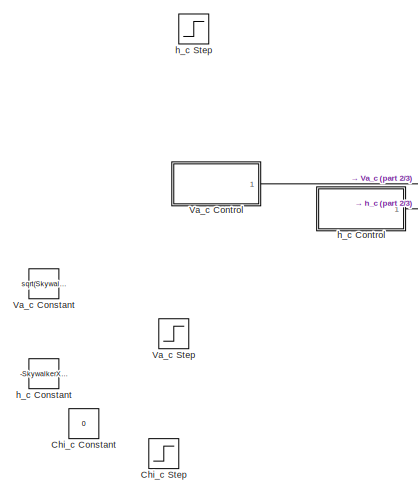
[diagram: root canvas - part 1/3, top left region]
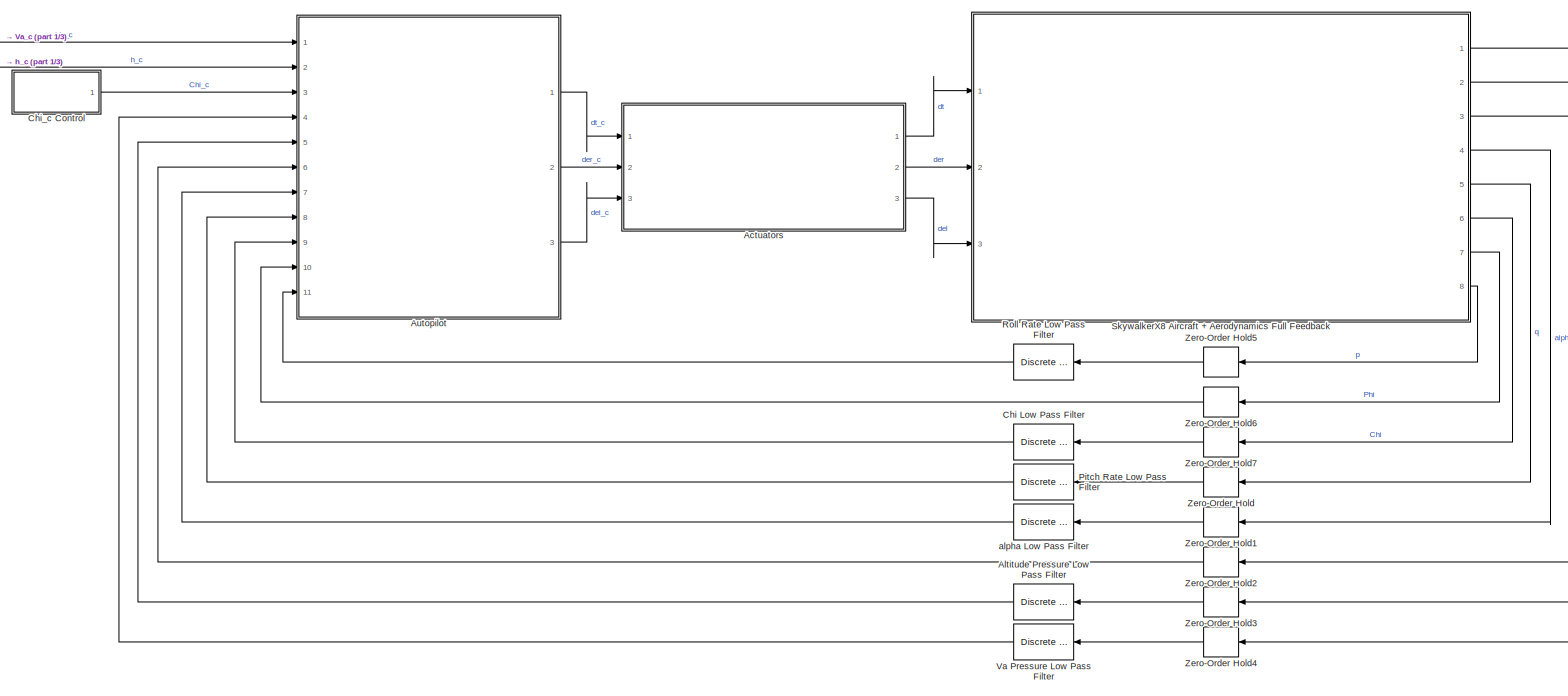
[diagram: root canvas - part 2/3, most of the canvas]
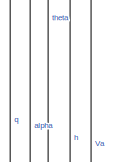
[diagram: root canvas - part 3/3, middle right region]
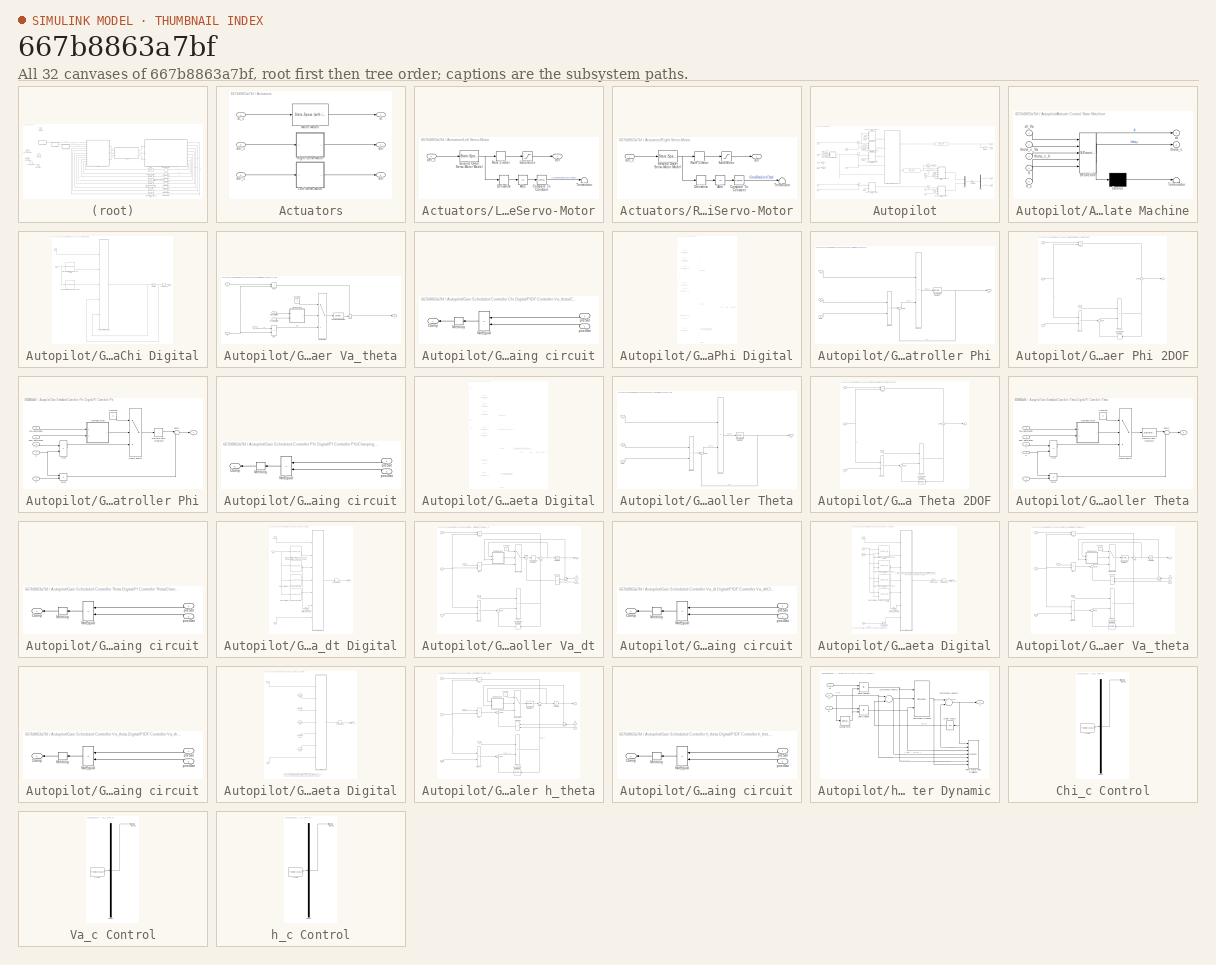
[diagram: thumbnail index - all 32 canvases of the model, root first then tree order]
MODEL slx_667b8863a7bf
KIND model
CONFIG AbsTol = auto
CONFIG EnableMultiTasking = off
CONFIG FixedStep = 0.001
CONFIG MaxStep = auto
CONFIG MinStep = auto
CONFIG RelTol = 1e-3
CONFIG SampleTimeConstraint = Unconstrained
CONFIG Solver = FixedStepAuto
CONFIG SolverName = FixedStepAuto
CONFIG StartTime = 0.0
CONFIG StopTime = 120
BLOCK [SubSystem] Actuators
  Ports = [3, 3]
  RequestExecContextInheritance = off
BLOCK [SubSystem] Actuators/Left Servo-Motor
  Ports = [1, 1]
  RequestExecContextInheritance = off
BLOCK [Abs] Actuators/Left Servo-Motor/Abs
  SaturateOnIntegerOverflow = off
BLOCK [Reference] Actuators/Left Servo-Motor/Compare To Constant  REF=simulink/Logic and Bit
Operations/Compare
To Constant
  Ports = [1, 1]
  SourceBlock = simulink/Logic and Bit\nOperations/Compare\nTo Constant
  SourceProductBaseCode = SL
  SourceProductName = Simulink
  SourceType = Compare To Constant
BLOCK [Derivative] Actuators/Left Servo-Motor/Derivative
BLOCK [RateLimiter] Actuators/Left Servo-Motor/Rate Limiter
  Commented = through
  FallingSlewLimit = -SkywalkerX8.Actuators.Servos.RateLimit
  InitialCondition = SkywalkerX8.InitialConditions.de*0.5 + SkywalkerX8.InitialConditions.da*0.5
  RisingSlewLimit = SkywalkerX8.Actuators.Servos.RateLimit
  SampleTimeMode = inherited
BLOCK [Saturate] Actuators/Left Servo-Motor/Saturation
  InputPortMap = u0
  LowerLimit = SkywalkerX8.Actuators.Servos.LowerSaturation
  Ports = [1, 1]
  UpperLimit = SkywalkerX8.Actuators.Servos.UpperSaturation
BLOCK [Reference] Actuators/Left Servo-Motor/Second Order Servo-Motor Model  REF=simulink_extras/Additional
Linear/State-Space
(with initial outputs)
  Ports = [1, 1]
  SourceBlock = simulink_extras/Additional\nLinear/State-Space\n(with initial outputs)
  SourceProductBaseCode = SL
  SourceProductName = Simulink
  SourceType = State-Space with Initial Outputs
BLOCK [Terminator] Actuators/Left Servo-Motor/Terminator
BLOCK [Outport] Actuators/Left Servo-Motor/del
  IconDisplay = Port number
BLOCK [Inport] Actuators/Left Servo-Motor/del_c
  IconDisplay = Port number
BLOCK [Reference] Actuators/Motor Model  REF=simulink_extras/Additional
Linear/State-Space
(with initial outputs)
  Ports = [1, 1]
  SourceBlock = simulink_extras/Additional\nLinear/State-Space\n(with initial outputs)
  SourceProductBaseCode = SL
  SourceProductName = Simulink
  SourceType = State-Space with Initial Outputs
BLOCK [SubSystem] Actuators/Right Servo-Motor
  Ports = [1, 1]
  RequestExecContextInheritance = off
BLOCK [Abs] Actuators/Right Servo-Motor/Abs
  SaturateOnIntegerOverflow = off
BLOCK [Reference] Actuators/Right Servo-Motor/Compare To Constant  REF=simulink/Logic and Bit
Operations/Compare
To Constant
  Ports = [1, 1]
  SourceBlock = simulink/Logic and Bit\nOperations/Compare\nTo Constant
  SourceProductBaseCode = SL
  SourceProductName = Simulink
  SourceType = Compare To Constant
BLOCK [Derivative] Actuators/Right Servo-Motor/Derivative
BLOCK [RateLimiter] Actuators/Right Servo-Motor/Rate Limiter
  Commented = through
  FallingSlewLimit = -SkywalkerX8.Actuators.Servos.RateLimit
  InitialCondition = SkywalkerX8.InitialConditions.de*0.5 - SkywalkerX8.InitialConditions.da*0.5
  RisingSlewLimit = SkywalkerX8.Actuators.Servos.RateLimit
  SampleTimeMode = inherited
BLOCK [Saturate] Actuators/Right Servo-Motor/Saturation
  InputPortMap = u0
  LowerLimit = SkywalkerX8.Actuators.Servos.LowerSaturation
  Ports = [1, 1]
  UpperLimit = SkywalkerX8.Actuators.Servos.UpperSaturation
BLOCK [Reference] Actuators/Right Servo-Motor/Second Order Servo-Motor Model  REF=simulink_extras/Additional
Linear/State-Space
(with initial outputs)
  Ports = [1, 1]
  SourceBlock = simulink_extras/Additional\nLinear/State-Space\n(with initial outputs)
  SourceProductBaseCode = SL
  SourceProductName = Simulink
  SourceType = State-Space with Initial Outputs
BLOCK [Terminator] Actuators/Right Servo-Motor/Terminator
BLOCK [Outport] Actuators/Right Servo-Motor/der
  IconDisplay = Port number
BLOCK [Inport] Actuators/Right Servo-Motor/der_c
  IconDisplay = Port number
BLOCK [Outport] Actuators/del
  IconDisplay = Port number
  Port = 3
BLOCK [Inport] Actuators/del_c
  IconDisplay = Port number
  Port = 3
BLOCK [Outport] Actuators/der
  IconDisplay = Port number
  Port = 2
BLOCK [Inport] Actuators/der_c
  IconDisplay = Port number
  Port = 2
BLOCK [Outport] Actuators/dt
  IconDisplay = Port number
BLOCK [Inport] Actuators/dt_c
  IconDisplay = Port number
BLOCK [Reference] Altitude Pressure Low Pass Filter  REF=simulink_extras/Additional
Discrete/Discrete
Transfer Fcn
(with initial outputs)
  Ports = [1, 1]
  SourceBlock = simulink_extras/Additional\nDiscrete/Discrete\nTransfer Fcn\n(with initial outputs)
  SourceProductBaseCode = SL
  SourceProductName = Simulink
  SourceType = Discrete Transfer Function with Initial Outputs
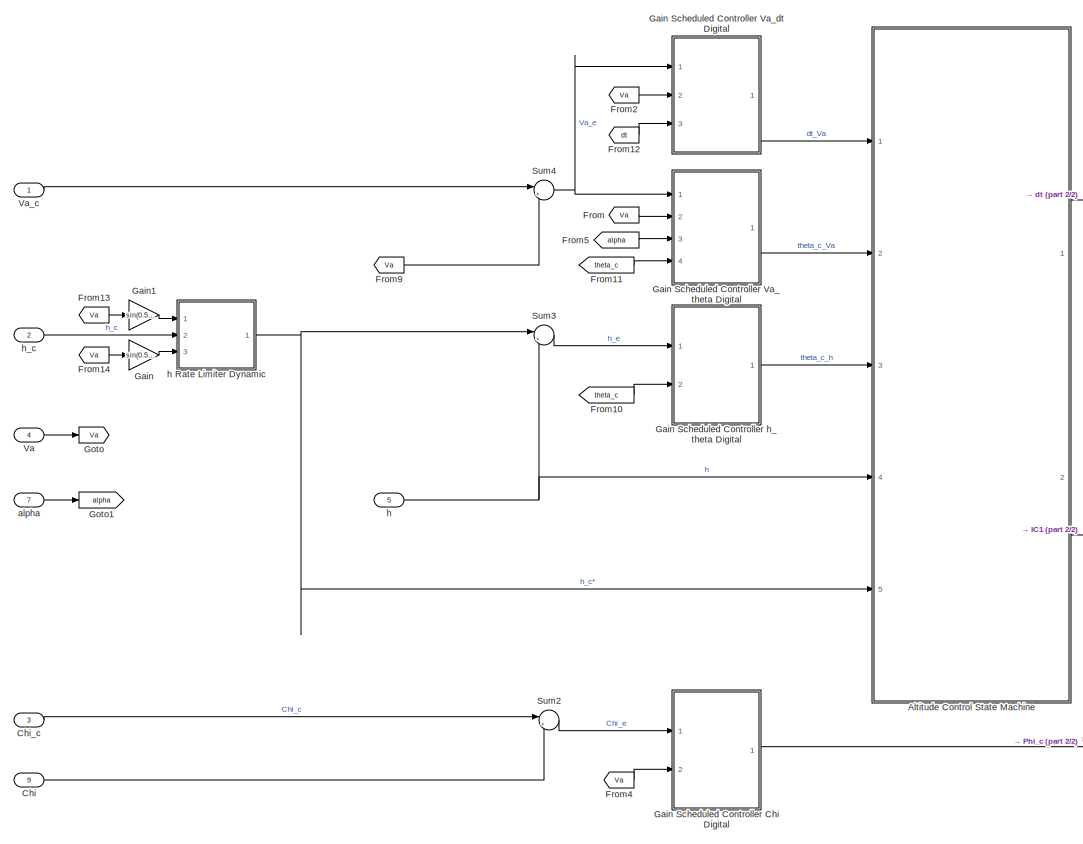
[diagram: Autopilot - part 1/2, left side, full height]
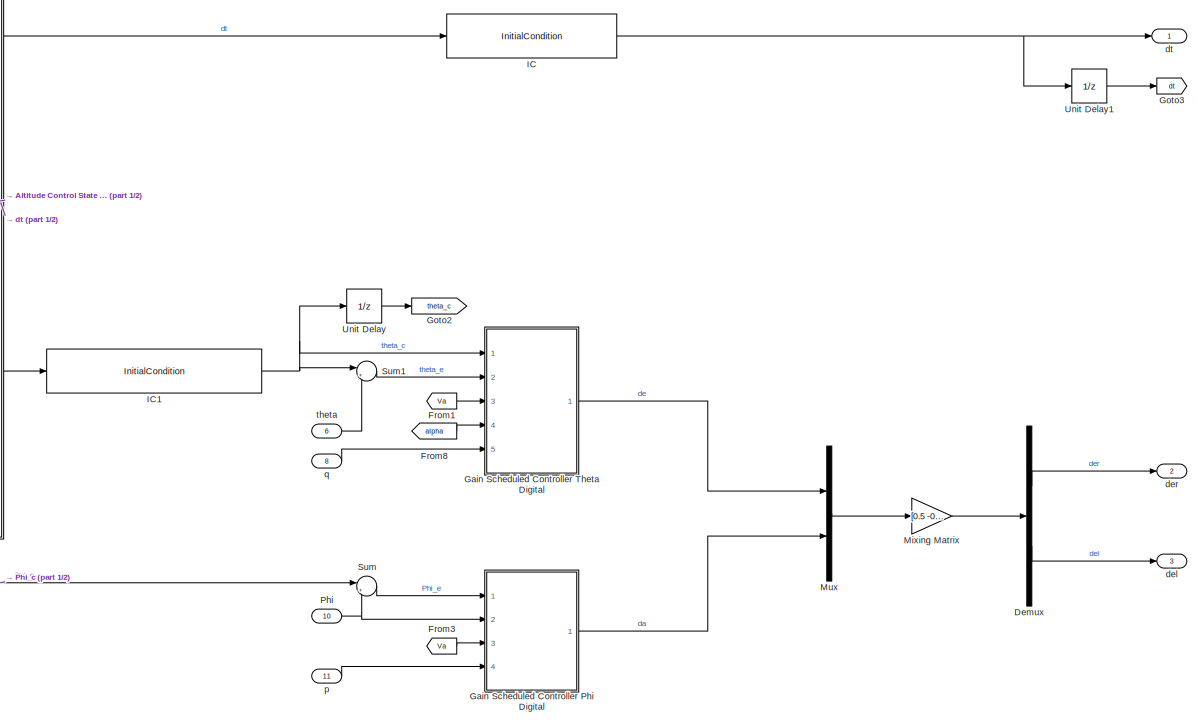
[diagram: Autopilot - part 2/2, right side, full height]
BLOCK [SubSystem] Autopilot
  Ports = [11, 3]
  RequestExecContextInheritance = off
BLOCK [SubSystem] Autopilot/Altitude Control State Machine
  ErrorFcn = Stateflow.Translate.translate
  PermitHierarchicalResolution = ExplicitOnly
  Ports = [5, 2]
  RequestExecContextInheritance = off
  SFBlockType = Chart
  TreatAsAtomicUnit = on
BLOCK [Demux] Autopilot/Altitude Control State Machine/ Demux 
  Outputs = 1
  Ports = [1, 1]
BLOCK [S-Function] Autopilot/Altitude Control State Machine/ SFunction 
  EnableBusSupport = on
  FunctionName = sf_sfun
  Parameters = PreFlightBypass,h_hold,h_takeoff,hyst_frac,theta_c_takeoff
  PortCounts = [5 3]
  Ports = [5, 3]
  SFcnIsStateOwnerBlock = off
  SFunctionDeploymentMode = off
  Tag = Stateflow S-Function SkywalkerX8_Control_Digital 3
BLOCK [Terminator] Autopilot/Altitude Control State Machine/ Terminator 
BLOCK [Outport] Autopilot/Altitude Control State Machine/dt
  IconDisplay = Port number
BLOCK [Inport] Autopilot/Altitude Control State Machine/dt_Va
  IconDisplay = Port number
BLOCK [Inport] Autopilot/Altitude Control State Machine/h
  IconDisplay = Port number
  Port = 4
BLOCK [Inport] Autopilot/Altitude Control State Machine/h_c
  IconDisplay = Port number
  Port = 5
BLOCK [Outport] Autopilot/Altitude Control State Machine/theta_c
  IconDisplay = Port number
  Port = 2
BLOCK [Inport] Autopilot/Altitude Control State Machine/theta_c_Va
  IconDisplay = Port number
  Port = 2
BLOCK [Inport] Autopilot/Altitude Control State Machine/theta_c_h
  IconDisplay = Port number
  Port = 3
BLOCK [Inport] Autopilot/Chi
  IconDisplay = Port number
  Port = 9
BLOCK [Inport] Autopilot/Chi_c
  IconDisplay = Port number
  Port = 3
BLOCK [Demux] Autopilot/Demux
  DisplayOption = bar
  Outputs = 2
  Ports = [1, 2]
BLOCK [From] Autopilot/From
  GotoTag = Va
BLOCK [From] Autopilot/From1
  GotoTag = Va
BLOCK [From] Autopilot/From10
  GotoTag = theta_c
BLOCK [From] Autopilot/From11
  GotoTag = theta_c
BLOCK [From] Autopilot/From12
  GotoTag = dt
BLOCK [From] Autopilot/From13
  GotoTag = Va
BLOCK [From] Autopilot/From14
  GotoTag = Va
BLOCK [From] Autopilot/From2
  GotoTag = Va
BLOCK [From] Autopilot/From3
  GotoTag = Va
BLOCK [From] Autopilot/From4
  GotoTag = Va
BLOCK [From] Autopilot/From5
  GotoTag = alpha
BLOCK [From] Autopilot/From8
  GotoTag = alpha
BLOCK [From] Autopilot/From9
  GotoTag = Va
BLOCK [Gain] Autopilot/Gain
  Gain = sin(0.5*SkywalkerX8.Control.Longitudinal.altController.lowerSaturationThetaC)
  OutDataTypeStr = Inherit: Inherit via internal rule
  ParamDataTypeStr = Inherit: Inherit via internal rule
  SaturateOnIntegerOverflow = off
BLOCK [SubSystem] Autopilot/Gain Scheduled Controller Chi Digital
  Ports = [2, 1]
  RequestExecContextInheritance = off
BLOCK [Inport] Autopilot/Gain Scheduled Controller Chi Digital/Chi_e
  IconDisplay = Port number
BLOCK [Lookup_n-D] Autopilot/Gain Scheduled Controller Chi Digital/PIDF Controller Chi Ki 2D Lookup Table
  BreakpointsForDimension1 = SkywalkerX8.Control.Lateral.SchedulingVariables.VaArray
  BreakpointsForDimension2 = SkywalkerX8.Control.Longitudinal.SchedulingVariables.alphaArray
  InternalRulePriority = Speed
  NumberOfTableDimensions = 1
  Ports = [1, 1]
  RndMeth = Simplest
  Table = SkywalkerX8.Control.Lateral.ChiController.Digital.KiChi
BLOCK [Lookup_n-D] Autopilot/Gain Scheduled Controller Chi Digital/PIDF Controller Chi Kp 2D Lookup Table
  BreakpointsForDimension1 = SkywalkerX8.Control.Lateral.SchedulingVariables.VaArray
  BreakpointsForDimension2 = SkywalkerX8.Control.Longitudinal.SchedulingVariables.alphaArray
  InternalRulePriority = Speed
  NumberOfTableDimensions = 1
  Ports = [1, 1]
  RndMeth = Simplest
  Table = SkywalkerX8.Control.Lateral.ChiController.Digital.KpChi
BLOCK [SubSystem] Autopilot/Gain Scheduled Controller Chi Digital/PIDF Controller Va_theta
  Ports = [5, 1]
  RequestExecContextInheritance = off
BLOCK [Switch] Autopilot/Gain Scheduled Controller Chi Digital/PIDF Controller Va_theta/Clamp Switch
  Criteria = u2 ~= 0
  InputSameDT = off
  SaturateOnIntegerOverflow = off
BLOCK [SubSystem] Autopilot/Gain Scheduled Controller Chi Digital/PIDF Controller Va_theta/Clamping circuit
  Ports = [2, 1]
  RequestExecContextInheritance = off
BLOCK [Outport] Autopilot/Gain Scheduled Controller Chi Digital/PIDF Controller Va_theta/Clamping circuit/Clamp
  DisableCoverage = on
  IconDisplay = Port number
BLOCK [Memory] Autopilot/Gain Scheduled Controller Chi Digital/PIDF Controller Va_theta/Clamping circuit/Memory
  DisableCoverage = on
BLOCK [RelationalOperator] Autopilot/Gain Scheduled Controller Chi Digital/PIDF Controller Va_theta/Clamping circuit/NotEqual
  DisableCoverage = on
  Operator = ~=
  Ports = [2, 1]
BLOCK [Inport] Autopilot/Gain Scheduled Controller Chi Digital/PIDF Controller Va_theta/Clamping circuit/postSat
  DisableCoverage = on
  IconDisplay = Port number
  Port = 2
BLOCK [Inport] Autopilot/Gain Scheduled Controller Chi Digital/PIDF Controller Va_theta/Clamping circuit/preSat
  DisableCoverage = on
  IconDisplay = Port number
BLOCK [Constant] Autopilot/Gain Scheduled Controller Chi Digital/PIDF Controller Va_theta/Constant
  Value = 0
BLOCK [DiscreteIntegrator] Autopilot/Gain Scheduled Controller Chi Digital/PIDF Controller Va_theta/Discrete-Time Integrator
  ICPrevOutput = DiscIntNeverNeededParam
  ICPrevScaledInput = DiscIntNeverNeededParam
  InitialCondition = SkywalkerX8.InitialConditions.PhiThetaPsi(1)
  InitialConditionSetting = Auto
  IntegratorMethod = Integration: Trapezoidal
  Ports = [1, 1]
  SampleTime = SkywalkerX8.Control.Lateral.ChiController.Digital.SampleTime
BLOCK [Inport] Autopilot/Gain Scheduled Controller Chi Digital/PIDF Controller Va_theta/I
  IconDisplay = Port number
  Port = 3
BLOCK [Product] Autopilot/Gain Scheduled Controller Chi Digital/PIDF Controller Va_theta/IOut
  DisableCoverage = on
  InputSameDT = off
  OutDataTypeStr = Inherit: Inherit via internal rule
  Ports = [2, 1]
  RndMeth = Floor
  SaturateOnIntegerOverflow = off
BLOCK [Inport] Autopilot/Gain Scheduled Controller Chi Digital/PIDF Controller Va_theta/P
  IconDisplay = Port number
  Port = 2
BLOCK [Product] Autopilot/Gain Scheduled Controller Chi Digital/PIDF Controller Va_theta/POut
  InputSameDT = off
  OutDataTypeStr = Inherit: Inherit via internal rule
  Ports = [2, 1]
  RndMeth = Floor
  SaturateOnIntegerOverflow = off
BLOCK [Inport] Autopilot/Gain Scheduled Controller Chi Digital/PIDF Controller Va_theta/Post-Saturation
  IconDisplay = Port number
  Port = 4
BLOCK [Inport] Autopilot/Gain Scheduled Controller Chi Digital/PIDF Controller Va_theta/Pre-Saturation
  IconDisplay = Port number
  Port = 5
BLOCK [Sum] Autopilot/Gain Scheduled Controller Chi Digital/PIDF Controller Va_theta/Sum2
  IconShape = round
  InputSameDT = off
  Inputs = ++|
  OutDataTypeStr = Inherit: Inherit via internal rule
  Ports = [2, 1]
  SaturateOnIntegerOverflow = off
BLOCK [Inport] Autopilot/Gain Scheduled Controller Chi Digital/PIDF Controller Va_theta/u
  IconDisplay = Port number
BLOCK [Outport] Autopilot/Gain Scheduled Controller Chi Digital/PIDF Controller Va_theta/y
  IconDisplay = Port number
  InitialOutput = 0
BLOCK [Outport] Autopilot/Gain Scheduled Controller Chi Digital/Phi_c
  IconDisplay = Port number
BLOCK [Saturate] Autopilot/Gain Scheduled Controller Chi Digital/Saturation
  InputPortMap = u0
  LowerLimit = SkywalkerX8.Control.Lateral.ChiController.lowerSaturationPhiC
  Ports = [1, 1]
  UpperLimit = SkywalkerX8.Control.Lateral.ChiController.upperSaturationPhiC
BLOCK [Inport] Autopilot/Gain Scheduled Controller Chi Digital/Va
  IconDisplay = Port number
  Port = 2
BLOCK [ZeroOrderHold] Autopilot/Gain Scheduled Controller Chi Digital/Zero-Order Hold
  SampleTime = SkywalkerX8.Control.Lateral.ChiController.Digital.SampleTime
BLOCK [SubSystem] Autopilot/Gain Scheduled Controller Phi Digital
  Ports = [4, 1]
  RequestExecContextInheritance = off
BLOCK [SubSystem] Autopilot/Gain Scheduled Controller Phi Digital/DF Controller Phi
  Ports = [3, 1]
  RequestExecContextInheritance = off
BLOCK [Inport] Autopilot/Gain Scheduled Controller Phi Digital/DF Controller Phi/D
  IconDisplay = Port number
  Port = 2
BLOCK [DiscreteIntegrator] Autopilot/Gain Scheduled Controller Phi Digital/DF Controller Phi/Discrete-Time Integrator
  ICPrevOutput = DiscIntNeverNeededParam
  ICPrevScaledInput = DiscIntNeverNeededParam
  InitialConditionSetting = Auto
  IntegratorMethod = Integration: Trapezoidal
  Ports = [1, 1]
  SampleTime = SkywalkerX8.Control.Lateral.PhiController.Digital.SampleTime
BLOCK [Inport] Autopilot/Gain Scheduled Controller Phi Digital/DF Controller Phi/N
  IconDisplay = Port number
BLOCK [Product] Autopilot/Gain Scheduled Controller Phi Digital/DF Controller Phi/Product
  InputSameDT = off
  OutDataTypeStr = Inherit: Inherit via internal rule
  Ports = [2, 1]
  RndMeth = Floor
  SaturateOnIntegerOverflow = off
BLOCK [Product] Autopilot/Gain Scheduled Controller Phi Digital/DF Controller Phi/Product1
  InputSameDT = off
  OutDataTypeStr = Inherit: Inherit via internal rule
  Ports = [2, 1]
  RndMeth = Floor
  SaturateOnIntegerOverflow = off
BLOCK [Sum] Autopilot/Gain Scheduled Controller Phi Digital/DF Controller Phi/Sum
  IconShape = round
  InputSameDT = off
  Inputs = |+-
  OutDataTypeStr = Inherit: Inherit via internal rule
  Ports = [2, 1]
  SaturateOnIntegerOverflow = off
BLOCK [Outport] Autopilot/Gain Scheduled Controller Phi Digital/DF Controller Phi/da*
  IconDisplay = Port number
BLOCK [Inport] Autopilot/Gain Scheduled Controller Phi Digital/DF Controller Phi/du//dt
  IconDisplay = Port number
  Port = 3
BLOCK [SubSystem] Autopilot/Gain Scheduled Controller Phi Digital/PDF Controller Phi 2DOF
  Ports = [4, 1]
  RequestExecContextInheritance = off
BLOCK [Lookup_n-D] Autopilot/Gain Scheduled Controller Phi Digital/PDF Controller Phi 2DOF Kd 2D Lookup Table
  BreakpointsForDimension1 = SkywalkerX8.Control.Lateral.SchedulingVariables.VaArray
  BreakpointsForDimension2 = SkywalkerX8.Control.Longitudinal.SchedulingVariables.alphaArray
  InternalRulePriority = Speed
  NumberOfTableDimensions = 1
  Ports = [1, 1]
  RndMeth = Simplest
  Table = SkywalkerX8.Control.Lateral.PhiController.Digital.KdPhi2DOF
BLOCK [Lookup_n-D] Autopilot/Gain Scheduled Controller Phi Digital/PDF Controller Phi 2DOF Kp 2D Lookup Table
  BreakpointsForDimension1 = SkywalkerX8.Control.Lateral.SchedulingVariables.VaArray
  BreakpointsForDimension2 = SkywalkerX8.Control.Longitudinal.SchedulingVariables.alphaArray
  InternalRulePriority = Speed
  NumberOfTableDimensions = 1
  Ports = [1, 1]
  RndMeth = Simplest
  Table = SkywalkerX8.Control.Lateral.PhiController.Digital.KpPhi2DOF
BLOCK [Lookup_n-D] Autopilot/Gain Scheduled Controller Phi Digital/PDF Controller Phi 2DOF N 2D Lookup Table
  BreakpointsForDimension1 = SkywalkerX8.Control.Lateral.SchedulingVariables.VaArray
  BreakpointsForDimension2 = SkywalkerX8.Control.Longitudinal.SchedulingVariables.alphaArray
  InternalRulePriority = Speed
  NumberOfTableDimensions = 1
  Ports = [1, 1]
  RndMeth = Simplest
  Table = SkywalkerX8.Control.Lateral.PhiController.Digital.NPhi2DOF
BLOCK [Inport] Autopilot/Gain Scheduled Controller Phi Digital/PDF Controller Phi 2DOF/D
  IconDisplay = Port number
  Port = 3
BLOCK [DiscreteIntegrator] Autopilot/Gain Scheduled Controller Phi Digital/PDF Controller Phi 2DOF/Discrete-Time Integrator
  ICPrevOutput = DiscIntNeverNeededParam
  ICPrevScaledInput = DiscIntNeverNeededParam
  InitialConditionSetting = Auto
  Ports = [1, 1]
  SampleTime = SkywalkerX8.Control.Lateral.PhiController.Digital.SampleTime
BLOCK [Inport] Autopilot/Gain Scheduled Controller Phi Digital/PDF Controller Phi 2DOF/N
  IconDisplay = Port number
  Port = 4
BLOCK [Inport] Autopilot/Gain Scheduled Controller Phi Digital/PDF Controller Phi 2DOF/P
  IconDisplay = Port number
  Port = 2
BLOCK [Product] Autopilot/Gain Scheduled Controller Phi Digital/PDF Controller Phi 2DOF/POut
  InputSameDT = off
  OutDataTypeStr = Inherit: Inherit via internal rule
  Ports = [2, 1]
  RndMeth = Floor
  SaturateOnIntegerOverflow = off
BLOCK [Product] Autopilot/Gain Scheduled Controller Phi Digital/PDF Controller Phi 2DOF/Product
  InputSameDT = off
  OutDataTypeStr = Inherit: Inherit via internal rule
  Ports = [2, 1]
  RndMeth = Floor
  SaturateOnIntegerOverflow = off
BLOCK [Product] Autopilot/Gain Scheduled Controller Phi Digital/PDF Controller Phi 2DOF/Product1
  InputSameDT = off
  OutDataTypeStr = Inherit: Inherit via internal rule
  Ports = [2, 1]
  RndMeth = Floor
  SaturateOnIntegerOverflow = off
BLOCK [Sum] Autopilot/Gain Scheduled Controller Phi Digital/PDF Controller Phi 2DOF/Sum
  IconShape = round
  InputSameDT = off
  Inputs = |+-
  OutDataTypeStr = Inherit: Inherit via internal rule
  Ports = [2, 1]
  SaturateOnIntegerOverflow = off
BLOCK [Sum] Autopilot/Gain Scheduled Controller Phi Digital/PDF Controller Phi 2DOF/Sum2
  IconShape = round
  InputSameDT = off
  OutDataTypeStr = Inherit: Inherit via internal rule
  Ports = [2, 1]
  SaturateOnIntegerOverflow = off
BLOCK [Inport] Autopilot/Gain Scheduled Controller Phi Digital/PDF Controller Phi 2DOF/u
  IconDisplay = Port number
BLOCK [Outport] Autopilot/Gain Scheduled Controller Phi Digital/PDF Controller Phi 2DOF/y
  IconDisplay = Port number
  InitialOutput = 0
BLOCK [SubSystem] Autopilot/Gain Scheduled Controller Phi Digital/PI Controller Phi
  Ports = [5, 1]
  RequestExecContextInheritance = off
BLOCK [Switch] Autopilot/Gain Scheduled Controller Phi Digital/PI Controller Phi/Clamp Switch
  Criteria = u2 ~= 0
  InputSameDT = off
  SaturateOnIntegerOverflow = off
BLOCK [SubSystem] Autopilot/Gain Scheduled Controller Phi Digital/PI Controller Phi/Clamping circuit
  Ports = [2, 1]
  RequestExecContextInheritance = off
BLOCK [Outport] Autopilot/Gain Scheduled Controller Phi Digital/PI Controller Phi/Clamping circuit/Clamp
  DisableCoverage = on
  IconDisplay = Port number
BLOCK [Memory] Autopilot/Gain Scheduled Controller Phi Digital/PI Controller Phi/Clamping circuit/Memory
  DisableCoverage = on
BLOCK [RelationalOperator] Autopilot/Gain Scheduled Controller Phi Digital/PI Controller Phi/Clamping circuit/NotEqual
  DisableCoverage = on
  Operator = ~=
  Ports = [2, 1]
BLOCK [Inport] Autopilot/Gain Scheduled Controller Phi Digital/PI Controller Phi/Clamping circuit/postSat
  DisableCoverage = on
  IconDisplay = Port number
  Port = 2
BLOCK [Inport] Autopilot/Gain Scheduled Controller Phi Digital/PI Controller Phi/Clamping circuit/preSat
  DisableCoverage = on
  IconDisplay = Port number
BLOCK [Constant] Autopilot/Gain Scheduled Controller Phi Digital/PI Controller Phi/Constant
  Value = 0
BLOCK [DiscreteIntegrator] Autopilot/Gain Scheduled Controller Phi Digital/PI Controller Phi/Discrete-Time Integrator
  ICPrevOutput = DiscIntNeverNeededParam
  ICPrevScaledInput = DiscIntNeverNeededParam
  InitialCondition = SkywalkerX8.InitialConditions.da
  InitialConditionSetting = Auto
  IntegratorMethod = Integration: Trapezoidal
  Ports = [1, 1]
  SampleTime = SkywalkerX8.Control.Lateral.PhiController.Digital.SampleTime
BLOCK [Inport] Autopilot/Gain Scheduled Controller Phi Digital/PI Controller Phi/I
  IconDisplay = Port number
  Port = 3
BLOCK [Product] Autopilot/Gain Scheduled Controller Phi Digital/PI Controller Phi/IOut
  DisableCoverage = on
  InputSameDT = off
  OutDataTypeStr = Inherit: Inherit via internal rule
  Ports = [2, 1]
  RndMeth = Floor
  SaturateOnIntegerOverflow = off
BLOCK [Inport] Autopilot/Gain Scheduled Controller Phi Digital/PI Controller Phi/P
  IconDisplay = Port number
  Port = 2
BLOCK [Product] Autopilot/Gain Scheduled Controller Phi Digital/PI Controller Phi/POut
  InputSameDT = off
  OutDataTypeStr = Inherit: Inherit via internal rule
  Ports = [2, 1]
  RndMeth = Floor
  SaturateOnIntegerOverflow = off
BLOCK [Inport] Autopilot/Gain Scheduled Controller Phi Digital/PI Controller Phi/Post-Saturation
  IconDisplay = Port number
  Port = 4
BLOCK [Inport] Autopilot/Gain Scheduled Controller Phi Digital/PI Controller Phi/Pre-Saturation
  IconDisplay = Port number
  Port = 5
BLOCK [Sum] Autopilot/Gain Scheduled Controller Phi Digital/PI Controller Phi/Sum2
  IconShape = round
  InputSameDT = off
  Inputs = |++
  OutDataTypeStr = Inherit: Inherit via internal rule
  Ports = [2, 1]
  SaturateOnIntegerOverflow = off
BLOCK [Inport] Autopilot/Gain Scheduled Controller Phi Digital/PI Controller Phi/u
  IconDisplay = Port number
BLOCK [Outport] Autopilot/Gain Scheduled Controller Phi Digital/PI Controller Phi/y
  IconDisplay = Port number
  InitialOutput = 0
BLOCK [Lookup_n-D] Autopilot/Gain Scheduled Controller Phi Digital/PIDF Controller Phi Kd 2D Lookup Table
  BreakpointsForDimension1 = SkywalkerX8.Control.Lateral.SchedulingVariables.VaArray
  BreakpointsForDimension2 = SkywalkerX8.Control.Longitudinal.SchedulingVariables.alphaArray
  InternalRulePriority = Speed
  NumberOfTableDimensions = 1
  Ports = [1, 1]
  RndMeth = Simplest
  Table = SkywalkerX8.Control.Lateral.PhiController.Digital.KdPhi
BLOCK [Lookup_n-D] Autopilot/Gain Scheduled Controller Phi Digital/PIDF Controller Phi Ki 2D Lookup Table
  BreakpointsForDimension1 = SkywalkerX8.Control.Lateral.SchedulingVariables.VaArray
  BreakpointsForDimension2 = SkywalkerX8.Control.Longitudinal.SchedulingVariables.alphaArray
  InternalRulePriority = Speed
  NumberOfTableDimensions = 1
  Ports = [1, 1]
  RndMeth = Simplest
  Table = SkywalkerX8.Control.Lateral.PhiController.Digital.KiPhi
BLOCK [Lookup_n-D] Autopilot/Gain Scheduled Controller Phi Digital/PIDF Controller Phi Kp 2D Lookup Table
  BreakpointsForDimension1 = SkywalkerX8.Control.Lateral.SchedulingVariables.VaArray
  BreakpointsForDimension2 = SkywalkerX8.Control.Longitudinal.SchedulingVariables.alphaArray
  InternalRulePriority = Speed
  NumberOfTableDimensions = 1
  Ports = [1, 1]
  RndMeth = Simplest
  Table = SkywalkerX8.Control.Lateral.PhiController.Digital.KpPhi
BLOCK [Lookup_n-D] Autopilot/Gain Scheduled Controller Phi Digital/PIDF Controller Phi N 2D Lookup Table
  BreakpointsForDimension1 = SkywalkerX8.Control.Lateral.SchedulingVariables.VaArray
  BreakpointsForDimension2 = SkywalkerX8.Control.Longitudinal.SchedulingVariables.alphaArray
  InternalRulePriority = Speed
  NumberOfTableDimensions = 1
  Ports = [1, 1]
  RndMeth = Simplest
  Table = SkywalkerX8.Control.Lateral.PhiController.Digital.NPhi
BLOCK [Inport] Autopilot/Gain Scheduled Controller Phi Digital/Phi
  IconDisplay = Port number
  Port = 2
BLOCK [Inport] Autopilot/Gain Scheduled Controller Phi Digital/Phi_e
  IconDisplay = Port number
BLOCK [Saturate] Autopilot/Gain Scheduled Controller Phi Digital/Saturation
  InputPortMap = u0
  LowerLimit = SkywalkerX8.Control.Lateral.PhiController.lowerSaturationDa
  Ports = [1, 1]
  UpperLimit = SkywalkerX8.Control.Lateral.PhiController.upperSaturationDa
BLOCK [Sum] Autopilot/Gain Scheduled Controller Phi Digital/Sum1
  IconShape = round
  InputSameDT = off
  Inputs = +++|
  OutDataTypeStr = Inherit: Inherit via internal rule
  Ports = [3, 1]
  SaturateOnIntegerOverflow = off
BLOCK [Inport] Autopilot/Gain Scheduled Controller Phi Digital/Va
  IconDisplay = Port number
  Port = 3
BLOCK [ZeroOrderHold] Autopilot/Gain Scheduled Controller Phi Digital/Zero-Order Hold
  SampleTime = SkywalkerX8.Control.Lateral.PhiController.Digital.SampleTime
BLOCK [Outport] Autopilot/Gain Scheduled Controller Phi Digital/da
  IconDisplay = Port number
BLOCK [Inport] Autopilot/Gain Scheduled Controller Phi Digital/p
  IconDisplay = Port number
  Port = 4
BLOCK [SubSystem] Autopilot/Gain Scheduled Controller Theta Digital
  Ports = [5, 1]
  RequestExecContextInheritance = off
BLOCK [SubSystem] Autopilot/Gain Scheduled Controller Theta Digital/DF Controller Theta
  Ports = [3, 1]
  RequestExecContextInheritance = off
BLOCK [Inport] Autopilot/Gain Scheduled Controller Theta Digital/DF Controller Theta/D
  IconDisplay = Port number
  Port = 2
BLOCK [DiscreteIntegrator] Autopilot/Gain Scheduled Controller Theta Digital/DF Controller Theta/Discrete-Time Integrator
  ICPrevOutput = DiscIntNeverNeededParam
  ICPrevScaledInput = DiscIntNeverNeededParam
  InitialConditionSetting = Auto
  IntegratorMethod = Integration: Trapezoidal
  Ports = [1, 1]
  SampleTime = SkywalkerX8.Control.Longitudinal.thetaController.Digital.SampleTime
BLOCK [Inport] Autopilot/Gain Scheduled Controller Theta Digital/DF Controller Theta/N
  IconDisplay = Port number
BLOCK [Product] Autopilot/Gain Scheduled Controller Theta Digital/DF Controller Theta/Product
  InputSameDT = off
  OutDataTypeStr = Inherit: Inherit via internal rule
  Ports = [2, 1]
  RndMeth = Floor
  SaturateOnIntegerOverflow = off
BLOCK [Product] Autopilot/Gain Scheduled Controller Theta Digital/DF Controller Theta/Product1
  InputSameDT = off
  OutDataTypeStr = Inherit: Inherit via internal rule
  Ports = [2, 1]
  RndMeth = Floor
  SaturateOnIntegerOverflow = off
BLOCK [Sum] Autopilot/Gain Scheduled Controller Theta Digital/DF Controller Theta/Sum
  IconShape = round
  InputSameDT = off
  Inputs = |+-
  OutDataTypeStr = Inherit: Inherit via internal rule
  Ports = [2, 1]
  SaturateOnIntegerOverflow = off
BLOCK [Outport] Autopilot/Gain Scheduled Controller Theta Digital/DF Controller Theta/de*
  IconDisplay = Port number
BLOCK [Inport] Autopilot/Gain Scheduled Controller Theta Digital/DF Controller Theta/du//dt
  IconDisplay = Port number
  Port = 3
BLOCK [SubSystem] Autopilot/Gain Scheduled Controller Theta Digital/PDF Controller Theta 2DOF
  Ports = [4, 1]
  RequestExecContextInheritance = off
BLOCK [Inport] Autopilot/Gain Scheduled Controller Theta Digital/PDF Controller Theta 2DOF/D
  IconDisplay = Port number
  Port = 3
BLOCK [DiscreteIntegrator] Autopilot/Gain Scheduled Controller Theta Digital/PDF Controller Theta 2DOF/Discrete-Time Integrator
  ICPrevOutput = DiscIntNeverNeededParam
  ICPrevScaledInput = DiscIntNeverNeededParam
  InitialCondition = SkywalkerX8.InitialConditions.ThetaController.RefController.Derivative
  InitialConditionSetting = Auto
  Ports = [1, 1]
  SampleTime = SkywalkerX8.Control.Longitudinal.thetaController.Digital.SampleTime
BLOCK [Inport] Autopilot/Gain Scheduled Controller Theta Digital/PDF Controller Theta 2DOF/N
  IconDisplay = Port number
  Port = 4
BLOCK [Inport] Autopilot/Gain Scheduled Controller Theta Digital/PDF Controller Theta 2DOF/P
  IconDisplay = Port number
  Port = 2
BLOCK [Product] Autopilot/Gain Scheduled Controller Theta Digital/PDF Controller Theta 2DOF/POut
  InputSameDT = off
  OutDataTypeStr = Inherit: Inherit via internal rule
  Ports = [2, 1]
  RndMeth = Floor
  SaturateOnIntegerOverflow = off
BLOCK [Product] Autopilot/Gain Scheduled Controller Theta Digital/PDF Controller Theta 2DOF/Product
  InputSameDT = off
  OutDataTypeStr = Inherit: Inherit via internal rule
  Ports = [2, 1]
  RndMeth = Floor
  SaturateOnIntegerOverflow = off
BLOCK [Product] Autopilot/Gain Scheduled Controller Theta Digital/PDF Controller Theta 2DOF/Product1
  InputSameDT = off
  OutDataTypeStr = Inherit: Inherit via internal rule
  Ports = [2, 1]
  RndMeth = Floor
  SaturateOnIntegerOverflow = off
BLOCK [Sum] Autopilot/Gain Scheduled Controller Theta Digital/PDF Controller Theta 2DOF/Sum
  IconShape = round
  InputSameDT = off
  Inputs = |+-
  OutDataTypeStr = Inherit: Inherit via internal rule
  Ports = [2, 1]
  SaturateOnIntegerOverflow = off
BLOCK [Sum] Autopilot/Gain Scheduled Controller Theta Digital/PDF Controller Theta 2DOF/Sum2
  IconShape = round
  InputSameDT = off
  OutDataTypeStr = Inherit: Inherit via internal rule
  Ports = [2, 1]
  SaturateOnIntegerOverflow = off
BLOCK [Inport] Autopilot/Gain Scheduled Controller Theta Digital/PDF Controller Theta 2DOF/u
  IconDisplay = Port number
BLOCK [Outport] Autopilot/Gain Scheduled Controller Theta Digital/PDF Controller Theta 2DOF/y
  IconDisplay = Port number
  InitialOutput = 0
BLOCK [Lookup_n-D] Autopilot/Gain Scheduled Controller Theta Digital/PDF Controller theta 2DOF Kd 2D Lookup Table
  BeginIndexSearchUsingPreviousIndexResult = on
  BreakpointsForDimension1 = SkywalkerX8.Control.Longitudinal.SchedulingVariables.VaArray
  BreakpointsForDimension2 = SkywalkerX8.Control.Longitudinal.SchedulingVariables.alphaArray
  InternalRulePriority = Speed
  Ports = [2, 1]
  RndMeth = Simplest
  Table = SkywalkerX8.Control.Longitudinal.thetaController.Digital.KdTheta2DOF
BLOCK [Lookup_n-D] Autopilot/Gain Scheduled Controller Theta Digital/PDF Controller theta 2DOF Kp 2D Lookup Table
  BreakpointsForDimension1 = SkywalkerX8.Control.Longitudinal.SchedulingVariables.VaArray
  BreakpointsForDimension2 = SkywalkerX8.Control.Longitudinal.SchedulingVariables.alphaArray
  InternalRulePriority = Speed
  Ports = [2, 1]
  RndMeth = Simplest
  Table = SkywalkerX8.Control.Longitudinal.thetaController.Digital.KpTheta2DOF
BLOCK [Lookup_n-D] Autopilot/Gain Scheduled Controller Theta Digital/PDF Controller theta 2DOF N 2D Lookup Table
  BreakpointsForDimension1 = SkywalkerX8.Control.Longitudinal.SchedulingVariables.VaArray
  BreakpointsForDimension2 = SkywalkerX8.Control.Longitudinal.SchedulingVariables.alphaArray
  InternalRulePriority = Speed
  Ports = [2, 1]
  RndMeth = Simplest
  Table = SkywalkerX8.Control.Longitudinal.thetaController.Digital.NTheta2DOF
BLOCK [SubSystem] Autopilot/Gain Scheduled Controller Theta Digital/PI Controller Theta
  Ports = [5, 1]
  RequestExecContextInheritance = off
BLOCK [Switch] Autopilot/Gain Scheduled Controller Theta Digital/PI Controller Theta/Clamp Switch
  Criteria = u2 ~= 0
  InputSameDT = off
  SaturateOnIntegerOverflow = off
BLOCK [SubSystem] Autopilot/Gain Scheduled Controller Theta Digital/PI Controller Theta/Clamping circuit
  Ports = [2, 1]
  RequestExecContextInheritance = off
BLOCK [Outport] Autopilot/Gain Scheduled Controller Theta Digital/PI Controller Theta/Clamping circuit/Clamp
  DisableCoverage = on
  IconDisplay = Port number
BLOCK [Memory] Autopilot/Gain Scheduled Controller Theta Digital/PI Controller Theta/Clamping circuit/Memory
  DisableCoverage = on
BLOCK [RelationalOperator] Autopilot/Gain Scheduled Controller Theta Digital/PI Controller Theta/Clamping circuit/NotEqual
  DisableCoverage = on
  Operator = ~=
  Ports = [2, 1]
BLOCK [Inport] Autopilot/Gain Scheduled Controller Theta Digital/PI Controller Theta/Clamping circuit/postSat
  DisableCoverage = on
  IconDisplay = Port number
  Port = 2
BLOCK [Inport] Autopilot/Gain Scheduled Controller Theta Digital/PI Controller Theta/Clamping circuit/preSat
  DisableCoverage = on
  IconDisplay = Port number
BLOCK [Constant] Autopilot/Gain Scheduled Controller Theta Digital/PI Controller Theta/Constant
  Value = 0
BLOCK [DiscreteIntegrator] Autopilot/Gain Scheduled Controller Theta Digital/PI Controller Theta/Discrete-Time Integrator
  ICPrevOutput = DiscIntNeverNeededParam
  ICPrevScaledInput = DiscIntNeverNeededParam
  InitialCondition = SkywalkerX8.InitialConditions.ThetaController.Integrator
  InitialConditionSetting = Auto
  IntegratorMethod = Integration: Trapezoidal
  Ports = [1, 1]
  SampleTime = SkywalkerX8.Control.Longitudinal.thetaController.Digital.SampleTime
BLOCK [Inport] Autopilot/Gain Scheduled Controller Theta Digital/PI Controller Theta/I
  IconDisplay = Port number
  Port = 3
BLOCK [Product] Autopilot/Gain Scheduled Controller Theta Digital/PI Controller Theta/IOut
  DisableCoverage = on
  InputSameDT = off
  OutDataTypeStr = Inherit: Inherit via internal rule
  Ports = [2, 1]
  RndMeth = Floor
  SaturateOnIntegerOverflow = off
BLOCK [Inport] Autopilot/Gain Scheduled Controller Theta Digital/PI Controller Theta/P
  IconDisplay = Port number
  Port = 2
BLOCK [Product] Autopilot/Gain Scheduled Controller Theta Digital/PI Controller Theta/POut
  InputSameDT = off
  OutDataTypeStr = Inherit: Inherit via internal rule
  Ports = [2, 1]
  RndMeth = Floor
  SaturateOnIntegerOverflow = off
BLOCK [Inport] Autopilot/Gain Scheduled Controller Theta Digital/PI Controller Theta/Post-Saturation
  IconDisplay = Port number
  Port = 4
BLOCK [Inport] Autopilot/Gain Scheduled Controller Theta Digital/PI Controller Theta/Pre-Saturation
  IconDisplay = Port number
  Port = 5
BLOCK [Sum] Autopilot/Gain Scheduled Controller Theta Digital/PI Controller Theta/Sum2
  IconShape = round
  InputSameDT = off
  Inputs = |++
  OutDataTypeStr = Inherit: Inherit via internal rule
  Ports = [2, 1]
  SaturateOnIntegerOverflow = off
BLOCK [Inport] Autopilot/Gain Scheduled Controller Theta Digital/PI Controller Theta/u
  IconDisplay = Port number
BLOCK [Outport] Autopilot/Gain Scheduled Controller Theta Digital/PI Controller Theta/y
  IconDisplay = Port number
  InitialOutput = 0
BLOCK [Lookup_n-D] Autopilot/Gain Scheduled Controller Theta Digital/PIDF Controller theta Kd 2D Lookup Table
  BreakpointsForDimension1 = SkywalkerX8.Control.Longitudinal.SchedulingVariables.VaArray
  BreakpointsForDimension2 = SkywalkerX8.Control.Longitudinal.SchedulingVariables.alphaArray
  InternalRulePriority = Speed
  Ports = [2, 1]
  RndMeth = Simplest
  Table = SkywalkerX8.Control.Longitudinal.thetaController.Digital.KdTheta
BLOCK [Lookup_n-D] Autopilot/Gain Scheduled Controller Theta Digital/PIDF Controller theta Ki 2D Lookup Table
  BreakpointsForDimension1 = SkywalkerX8.Control.Longitudinal.SchedulingVariables.VaArray
  BreakpointsForDimension2 = SkywalkerX8.Control.Longitudinal.SchedulingVariables.alphaArray
  InternalRulePriority = Speed
  Ports = [2, 1]
  RndMeth = Simplest
  Table = SkywalkerX8.Control.Longitudinal.thetaController.Digital.KiTheta
BLOCK [Lookup_n-D] Autopilot/Gain Scheduled Controller Theta Digital/PIDF Controller theta Kp 2D Lookup Table
  BreakpointsForDimension1 = SkywalkerX8.Control.Longitudinal.SchedulingVariables.VaArray
  BreakpointsForDimension2 = SkywalkerX8.Control.Longitudinal.SchedulingVariables.alphaArray
  InternalRulePriority = Speed
  Ports = [2, 1]
  RndMeth = Simplest
  Table = SkywalkerX8.Control.Longitudinal.thetaController.Digital.KpTheta
BLOCK [Lookup_n-D] Autopilot/Gain Scheduled Controller Theta Digital/PIDF Controller theta N 2D Lookup Table
  BreakpointsForDimension1 = SkywalkerX8.Control.Longitudinal.SchedulingVariables.VaArray
  BreakpointsForDimension2 = SkywalkerX8.Control.Longitudinal.SchedulingVariables.alphaArray
  InternalRulePriority = Speed
  Ports = [2, 1]
  RndMeth = Simplest
  Table = SkywalkerX8.Control.Longitudinal.thetaController.Digital.NTheta
BLOCK [Inport] Autopilot/Gain Scheduled Controller Theta Digital/Ref
  IconDisplay = Port number
BLOCK [Saturate] Autopilot/Gain Scheduled Controller Theta Digital/Saturation
  InputPortMap = u0
  LowerLimit = SkywalkerX8.Control.Longitudinal.thetaController.Digital.lowerSaturationNegativeDe
  Ports = [1, 1]
  UpperLimit = SkywalkerX8.Control.Longitudinal.thetaController.Digital.upperSaturationNegativeDe
BLOCK [Gain] Autopilot/Gain Scheduled Controller Theta Digital/Sign Inversion
  Gain = -1
  OutDataTypeStr = Inherit: Inherit via internal rule
  ParamDataTypeStr = Inherit: Inherit via internal rule
  SaturateOnIntegerOverflow = off
BLOCK [Sum] Autopilot/Gain Scheduled Controller Theta Digital/Sum1
  IconShape = round
  InputSameDT = off
  Inputs = +++|
  OutDataTypeStr = Inherit: Inherit via internal rule
  Ports = [3, 1]
  SaturateOnIntegerOverflow = off
BLOCK [Inport] Autopilot/Gain Scheduled Controller Theta Digital/Va
  IconDisplay = Port number
  Port = 3
BLOCK [ZeroOrderHold] Autopilot/Gain Scheduled Controller Theta Digital/Zero-Order Hold
  SampleTime = SkywalkerX8.Control.Longitudinal.thetaController.Digital.SampleTime
BLOCK [Inport] Autopilot/Gain Scheduled Controller Theta Digital/alpha
  IconDisplay = Port number
  Port = 4
BLOCK [Outport] Autopilot/Gain Scheduled Controller Theta Digital/de
  IconDisplay = Port number
BLOCK [Inport] Autopilot/Gain Scheduled Controller Theta Digital/q
  IconDisplay = Port number
  Port = 5
BLOCK [Inport] Autopilot/Gain Scheduled Controller Theta Digital/theta_e
  IconDisplay = Port number
  Port = 2
BLOCK [SubSystem] Autopilot/Gain Scheduled Controller Va_dt Digital
  Ports = [3, 1]
  RequestExecContextInheritance = off
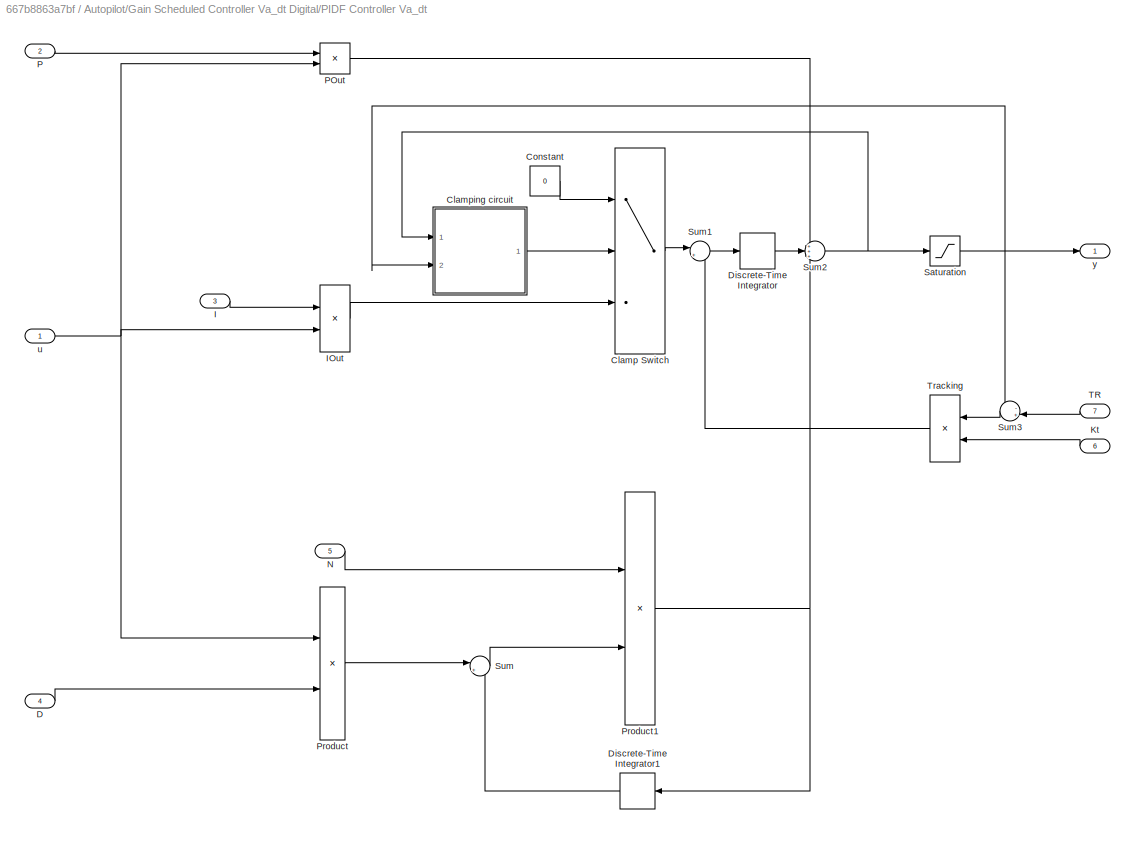
BLOCK [SubSystem] Autopilot/Gain Scheduled Controller Va_dt Digital/PIDF Controller Va_dt
  Ports = [7, 1]
  RequestExecContextInheritance = off
BLOCK [Lookup_n-D] Autopilot/Gain Scheduled Controller Va_dt Digital/PIDF Controller Va_dt Kd Lookup Table
  BreakpointsForDimension1 = SkywalkerX8.Control.Longitudinal.SchedulingVariables.VaArray
  BreakpointsForDimension2 = [1 2 3 4 5]
  InternalRulePriority = Speed
  NumberOfTableDimensions = 1
  Ports = [1, 1]
  RndMeth = Simplest
  Table = SkywalkerX8.Control.Longitudinal.VaDtController.Digital.KdVaDt
BLOCK [Lookup_n-D] Autopilot/Gain Scheduled Controller Va_dt Digital/PIDF Controller Va_dt Ki Lookup Table
  BreakpointsForDimension1 = SkywalkerX8.Control.Longitudinal.SchedulingVariables.VaArray
  BreakpointsForDimension2 = [1 2 3 4 5]
  InternalRulePriority = Speed
  NumberOfTableDimensions = 1
  Ports = [1, 1]
  RndMeth = Simplest
  Table = SkywalkerX8.Control.Longitudinal.VaDtController.Digital.KiVaDt
BLOCK [Lookup_n-D] Autopilot/Gain Scheduled Controller Va_dt Digital/PIDF Controller Va_dt Kp Lookup Table
  BreakpointsForDimension1 = SkywalkerX8.Control.Longitudinal.SchedulingVariables.VaArray
  BreakpointsForDimension2 = [1 2 3 4 5]
  InternalRulePriority = Speed
  NumberOfTableDimensions = 1
  Ports = [1, 1]
  RndMeth = Simplest
  Table = SkywalkerX8.Control.Longitudinal.VaDtController.Digital.KpVaDt
BLOCK [Gain] Autopilot/Gain Scheduled Controller Va_dt Digital/PIDF Controller Va_dt Kt Tracking Gain Scalar
  Gain = SkywalkerX8.Control.Longitudinal.VaDtController.KtScalar
  OutDataTypeStr = Inherit: Inherit via internal rule
  ParamDataTypeStr = Inherit: Inherit via internal rule
  SaturateOnIntegerOverflow = off
BLOCK [Lookup_n-D] Autopilot/Gain Scheduled Controller Va_dt Digital/PIDF Controller Va_dt N Lookup Table
  BreakpointsForDimension1 = SkywalkerX8.Control.Longitudinal.SchedulingVariables.VaArray
  BreakpointsForDimension2 = [1 2 3 4 5]
  InternalRulePriority = Speed
  NumberOfTableDimensions = 1
  Ports = [1, 1]
  RndMeth = Simplest
  Table = SkywalkerX8.Control.Longitudinal.VaDtController.Digital.NVaDt
BLOCK [Switch] Autopilot/Gain Scheduled Controller Va_dt Digital/PIDF Controller Va_dt/Clamp Switch
  Criteria = u2 ~= 0
  InputSameDT = off
  SaturateOnIntegerOverflow = off
BLOCK [SubSystem] Autopilot/Gain Scheduled Controller Va_dt Digital/PIDF Controller Va_dt/Clamping circuit
  Ports = [2, 1]
  RequestExecContextInheritance = off
BLOCK [Outport] Autopilot/Gain Scheduled Controller Va_dt Digital/PIDF Controller Va_dt/Clamping circuit/Clamp
  DisableCoverage = on
  IconDisplay = Port number
BLOCK [Memory] Autopilot/Gain Scheduled Controller Va_dt Digital/PIDF Controller Va_dt/Clamping circuit/Memory
  DisableCoverage = on
BLOCK [RelationalOperator] Autopilot/Gain Scheduled Controller Va_dt Digital/PIDF Controller Va_dt/Clamping circuit/NotEqual
  DisableCoverage = on
  Operator = ~=
  Ports = [2, 1]
BLOCK [Inport] Autopilot/Gain Scheduled Controller Va_dt Digital/PIDF Controller Va_dt/Clamping circuit/postSat
  DisableCoverage = on
  IconDisplay = Port number
  Port = 2
BLOCK [Inport] Autopilot/Gain Scheduled Controller Va_dt Digital/PIDF Controller Va_dt/Clamping circuit/preSat
  DisableCoverage = on
  IconDisplay = Port number
BLOCK [Constant] Autopilot/Gain Scheduled Controller Va_dt Digital/PIDF Controller Va_dt/Constant
  Value = 0
BLOCK [Inport] Autopilot/Gain Scheduled Controller Va_dt Digital/PIDF Controller Va_dt/D
  IconDisplay = Port number
  Port = 4
BLOCK [DiscreteIntegrator] Autopilot/Gain Scheduled Controller Va_dt Digital/PIDF Controller Va_dt/Discrete-Time Integrator
  ICPrevOutput = DiscIntNeverNeededParam
  ICPrevScaledInput = DiscIntNeverNeededParam
  InitialCondition = SkywalkerX8.InitialConditions.dt
  InitialConditionSetting = Auto
  IntegratorMethod = Integration: Trapezoidal
  Ports = [1, 1]
  SampleTime = SkywalkerX8.Control.Longitudinal.VaDtController.Digital.SampleTime
BLOCK [DiscreteIntegrator] Autopilot/Gain Scheduled Controller Va_dt Digital/PIDF Controller Va_dt/Discrete-Time Integrator1
  ICPrevOutput = DiscIntNeverNeededParam
  ICPrevScaledInput = DiscIntNeverNeededParam
  InitialConditionSetting = Auto
  Ports = [1, 1]
  SampleTime = SkywalkerX8.Control.Longitudinal.VaDtController.Digital.SampleTime
BLOCK [Inport] Autopilot/Gain Scheduled Controller Va_dt Digital/PIDF Controller Va_dt/I
  IconDisplay = Port number
  Port = 3
BLOCK [Product] Autopilot/Gain Scheduled Controller Va_dt Digital/PIDF Controller Va_dt/IOut
  DisableCoverage = on
  InputSameDT = off
  OutDataTypeStr = Inherit: Inherit via internal rule
  Ports = [2, 1]
  RndMeth = Floor
  SaturateOnIntegerOverflow = off
BLOCK [Inport] Autopilot/Gain Scheduled Controller Va_dt Digital/PIDF Controller Va_dt/Kt
  IconDisplay = Port number
  Port = 6
BLOCK [Inport] Autopilot/Gain Scheduled Controller Va_dt Digital/PIDF Controller Va_dt/N
  IconDisplay = Port number
  Port = 5
BLOCK [Inport] Autopilot/Gain Scheduled Controller Va_dt Digital/PIDF Controller Va_dt/P
  IconDisplay = Port number
  Port = 2
BLOCK [Product] Autopilot/Gain Scheduled Controller Va_dt Digital/PIDF Controller Va_dt/POut
  InputSameDT = off
  OutDataTypeStr = Inherit: Inherit via internal rule
  Ports = [2, 1]
  RndMeth = Floor
  SaturateOnIntegerOverflow = off
BLOCK [Product] Autopilot/Gain Scheduled Controller Va_dt Digital/PIDF Controller Va_dt/Product
  InputSameDT = off
  OutDataTypeStr = Inherit: Inherit via internal rule
  Ports = [2, 1]
  RndMeth = Floor
  SaturateOnIntegerOverflow = off
BLOCK [Product] Autopilot/Gain Scheduled Controller Va_dt Digital/PIDF Controller Va_dt/Product1
  InputSameDT = off
  OutDataTypeStr = Inherit: Inherit via internal rule
  Ports = [2, 1]
  RndMeth = Floor
  SaturateOnIntegerOverflow = off
BLOCK [Saturate] Autopilot/Gain Scheduled Controller Va_dt Digital/PIDF Controller Va_dt/Saturation
  InputPortMap = u0
  LowerLimit = SkywalkerX8.Control.Longitudinal.VaDtController.lowerSaturationDt
  Ports = [1, 1]
  UpperLimit = SkywalkerX8.Control.Longitudinal.VaDtController.upperSaturationDt
BLOCK [Sum] Autopilot/Gain Scheduled Controller Va_dt Digital/PIDF Controller Va_dt/Sum
  IconShape = round
  InputSameDT = off
  Inputs = |+-
  OutDataTypeStr = Inherit: Inherit via internal rule
  Ports = [2, 1]
  SaturateOnIntegerOverflow = off
BLOCK [Sum] Autopilot/Gain Scheduled Controller Va_dt Digital/PIDF Controller Va_dt/Sum1
  IconShape = round
  InputSameDT = off
  Inputs = |++
  OutDataTypeStr = Inherit: Inherit via internal rule
  Ports = [2, 1]
  SaturateOnIntegerOverflow = off
BLOCK [Sum] Autopilot/Gain Scheduled Controller Va_dt Digital/PIDF Controller Va_dt/Sum2
  IconShape = round
  InputSameDT = off
  Inputs = +++
  OutDataTypeStr = Inherit: Inherit via internal rule
  Ports = [3, 1]
  SaturateOnIntegerOverflow = off
BLOCK [Sum] Autopilot/Gain Scheduled Controller Va_dt Digital/PIDF Controller Va_dt/Sum3
  IconShape = round
  InputSameDT = off
  Inputs = -+|
  OutDataTypeStr = Inherit: Inherit via internal rule
  Ports = [2, 1]
  SaturateOnIntegerOverflow = off
BLOCK [Inport] Autopilot/Gain Scheduled Controller Va_dt Digital/PIDF Controller Va_dt/TR
  IconDisplay = Port number
  Port = 7
BLOCK [Product] Autopilot/Gain Scheduled Controller Va_dt Digital/PIDF Controller Va_dt/Tracking
  DisableCoverage = on
  InputSameDT = off
  OutDataTypeStr = Inherit: Inherit via internal rule
  Ports = [2, 1]
  RndMeth = Floor
  SaturateOnIntegerOverflow = off
BLOCK [Inport] Autopilot/Gain Scheduled Controller Va_dt Digital/PIDF Controller Va_dt/u
  IconDisplay = Port number
BLOCK [Outport] Autopilot/Gain Scheduled Controller Va_dt Digital/PIDF Controller Va_dt/y
  IconDisplay = Port number
  InitialOutput = 0
BLOCK [Inport] Autopilot/Gain Scheduled Controller Va_dt Digital/TR
  IconDisplay = Port number
  Port = 3
BLOCK [Inport] Autopilot/Gain Scheduled Controller Va_dt Digital/Va
  IconDisplay = Port number
  Port = 2
BLOCK [Inport] Autopilot/Gain Scheduled Controller Va_dt Digital/Va_e
  IconDisplay = Port number
BLOCK [ZeroOrderHold] Autopilot/Gain Scheduled Controller Va_dt Digital/Zero-Order Hold
  SampleTime = SkywalkerX8.Control.Longitudinal.VaDtController.Digital.SampleTime
BLOCK [Outport] Autopilot/Gain Scheduled Controller Va_dt Digital/dt
  IconDisplay = Port number
BLOCK [SubSystem] Autopilot/Gain Scheduled Controller Va_theta Digital
  Ports = [4, 1]
  RequestExecContextInheritance = off
BLOCK [SubSystem] Autopilot/Gain Scheduled Controller Va_theta Digital/PIDF Controller Va_theta
  Ports = [7, 1]
  RequestExecContextInheritance = off
BLOCK [Lookup_n-D] Autopilot/Gain Scheduled Controller Va_theta Digital/PIDF Controller Va_theta Kd 2D Lookup Table
  BreakpointsForDimension1 = SkywalkerX8.Control.Longitudinal.SchedulingVariables.VaArray
  BreakpointsForDimension2 = SkywalkerX8.Control.Longitudinal.SchedulingVariables.alphaArray
  InternalRulePriority = Speed
  Ports = [2, 1]
  RndMeth = Simplest
  Table = SkywalkerX8.Control.Longitudinal.VaThetaController.Digital.KdVaTheta
BLOCK [Lookup_n-D] Autopilot/Gain Scheduled Controller Va_theta Digital/PIDF Controller Va_theta Ki 2D Lookup Table
  BreakpointsForDimension1 = SkywalkerX8.Control.Longitudinal.SchedulingVariables.VaArray
  BreakpointsForDimension2 = SkywalkerX8.Control.Longitudinal.SchedulingVariables.alphaArray
  InternalRulePriority = Speed
  Ports = [2, 1]
  RndMeth = Simplest
  Table = SkywalkerX8.Control.Longitudinal.VaThetaController.Digital.KiVaTheta
BLOCK [Lookup_n-D] Autopilot/Gain Scheduled Controller Va_theta Digital/PIDF Controller Va_theta Kp 2D Lookup Table
  BreakpointsForDimension1 = SkywalkerX8.Control.Longitudinal.SchedulingVariables.VaArray
  BreakpointsForDimension2 = SkywalkerX8.Control.Longitudinal.SchedulingVariables.alphaArray
  InternalRulePriority = Speed
  Ports = [2, 1]
  RndMeth = Simplest
  Table = SkywalkerX8.Control.Longitudinal.VaThetaController.Digital.KpVaTheta
BLOCK [Gain] Autopilot/Gain Scheduled Controller Va_theta Digital/PIDF Controller Va_theta Kt Tracking Gain Scalar
  Gain = SkywalkerX8.Control.Longitudinal.VaThetaController.KtScalar
  OutDataTypeStr = Inherit: Inherit via internal rule
  ParamDataTypeStr = Inherit: Inherit via internal rule
  SaturateOnIntegerOverflow = off
BLOCK [Lookup_n-D] Autopilot/Gain Scheduled Controller Va_theta Digital/PIDF Controller Va_theta N 2D Lookup Table
  BreakpointsForDimension1 = SkywalkerX8.Control.Longitudinal.SchedulingVariables.VaArray
  BreakpointsForDimension2 = SkywalkerX8.Control.Longitudinal.SchedulingVariables.alphaArray
  InternalRulePriority = Speed
  Ports = [2, 1]
  RndMeth = Simplest
  Table = SkywalkerX8.Control.Longitudinal.VaThetaController.Digital.NVaTheta
BLOCK [Switch] Autopilot/Gain Scheduled Controller Va_theta Digital/PIDF Controller Va_theta/Clamp Switch
  Criteria = u2 ~= 0
  InputSameDT = off
  SaturateOnIntegerOverflow = off
BLOCK [SubSystem] Autopilot/Gain Scheduled Controller Va_theta Digital/PIDF Controller Va_theta/Clamping circuit
  Ports = [2, 1]
  RequestExecContextInheritance = off
BLOCK [Outport] Autopilot/Gain Scheduled Controller Va_theta Digital/PIDF Controller Va_theta/Clamping circuit/Clamp
  DisableCoverage = on
  IconDisplay = Port number
BLOCK [Memory] Autopilot/Gain Scheduled Controller Va_theta Digital/PIDF Controller Va_theta/Clamping circuit/Memory
  DisableCoverage = on
BLOCK [RelationalOperator] Autopilot/Gain Scheduled Controller Va_theta Digital/PIDF Controller Va_theta/Clamping circuit/NotEqual
  DisableCoverage = on
  Operator = ~=
  Ports = [2, 1]
BLOCK [Inport] Autopilot/Gain Scheduled Controller Va_theta Digital/PIDF Controller Va_theta/Clamping circuit/postSat
  DisableCoverage = on
  IconDisplay = Port number
  Port = 2
BLOCK [Inport] Autopilot/Gain Scheduled Controller Va_theta Digital/PIDF Controller Va_theta/Clamping circuit/preSat
  DisableCoverage = on
  IconDisplay = Port number
BLOCK [Constant] Autopilot/Gain Scheduled Controller Va_theta Digital/PIDF Controller Va_theta/Constant
  Value = 0
BLOCK [Inport] Autopilot/Gain Scheduled Controller Va_theta Digital/PIDF Controller Va_theta/D
  IconDisplay = Port number
  Port = 4
BLOCK [DiscreteIntegrator] Autopilot/Gain Scheduled Controller Va_theta Digital/PIDF Controller Va_theta/Discrete-Time Integrator
  ICPrevOutput = DiscIntNeverNeededParam
  ICPrevScaledInput = DiscIntNeverNeededParam
  InitialCondition = -SkywalkerX8.InitialConditions.PhiThetaPsi(2)
  InitialConditionSetting = Auto
  IntegratorMethod = Integration: Trapezoidal
  Ports = [1, 1]
  SampleTime = SkywalkerX8.Control.Longitudinal.VaThetaController.Digital.SampleTime
BLOCK [DiscreteIntegrator] Autopilot/Gain Scheduled Controller Va_theta Digital/PIDF Controller Va_theta/Discrete-Time Integrator1
  ICPrevOutput = DiscIntNeverNeededParam
  ICPrevScaledInput = DiscIntNeverNeededParam
  InitialConditionSetting = Auto
  Ports = [1, 1]
  SampleTime = SkywalkerX8.Control.Longitudinal.VaThetaController.Digital.SampleTime
BLOCK [Inport] Autopilot/Gain Scheduled Controller Va_theta Digital/PIDF Controller Va_theta/I
  IconDisplay = Port number
  Port = 3
BLOCK [Product] Autopilot/Gain Scheduled Controller Va_theta Digital/PIDF Controller Va_theta/IOut
  DisableCoverage = on
  InputSameDT = off
  OutDataTypeStr = Inherit: Inherit via internal rule
  Ports = [2, 1]
  RndMeth = Floor
  SaturateOnIntegerOverflow = off
BLOCK [Inport] Autopilot/Gain Scheduled Controller Va_theta Digital/PIDF Controller Va_theta/Kt
  IconDisplay = Port number
  Port = 6
BLOCK [Inport] Autopilot/Gain Scheduled Controller Va_theta Digital/PIDF Controller Va_theta/N
  IconDisplay = Port number
  Port = 5
BLOCK [Inport] Autopilot/Gain Scheduled Controller Va_theta Digital/PIDF Controller Va_theta/P
  IconDisplay = Port number
  Port = 2
BLOCK [Product] Autopilot/Gain Scheduled Controller Va_theta Digital/PIDF Controller Va_theta/POut
  InputSameDT = off
  OutDataTypeStr = Inherit: Inherit via internal rule
  Ports = [2, 1]
  RndMeth = Floor
  SaturateOnIntegerOverflow = off
BLOCK [Product] Autopilot/Gain Scheduled Controller Va_theta Digital/PIDF Controller Va_theta/Product
  InputSameDT = off
  OutDataTypeStr = Inherit: Inherit via internal rule
  Ports = [2, 1]
  RndMeth = Floor
  SaturateOnIntegerOverflow = off
BLOCK [Product] Autopilot/Gain Scheduled Controller Va_theta Digital/PIDF Controller Va_theta/Product1
  InputSameDT = off
  OutDataTypeStr = Inherit: Inherit via internal rule
  Ports = [2, 1]
  RndMeth = Floor
  SaturateOnIntegerOverflow = off
BLOCK [Saturate] Autopilot/Gain Scheduled Controller Va_theta Digital/PIDF Controller Va_theta/Saturation
  InputPortMap = u0
  LowerLimit = SkywalkerX8.Control.Longitudinal.VaThetaController.lowerSaturationThetaC
  Ports = [1, 1]
  UpperLimit = SkywalkerX8.Control.Longitudinal.VaThetaController.upperSaturationThetaC
BLOCK [Sum] Autopilot/Gain Scheduled Controller Va_theta Digital/PIDF Controller Va_theta/Sum
  IconShape = round
  InputSameDT = off
  Inputs = |+-
  OutDataTypeStr = Inherit: Inherit via internal rule
  Ports = [2, 1]
  SaturateOnIntegerOverflow = off
BLOCK [Sum] Autopilot/Gain Scheduled Controller Va_theta Digital/PIDF Controller Va_theta/Sum1
  IconShape = round
  InputSameDT = off
  Inputs = |++
  OutDataTypeStr = Inherit: Inherit via internal rule
  Ports = [2, 1]
  SaturateOnIntegerOverflow = off
BLOCK [Sum] Autopilot/Gain Scheduled Controller Va_theta Digital/PIDF Controller Va_theta/Sum2
  IconShape = round
  InputSameDT = off
  Inputs = +++
  OutDataTypeStr = Inherit: Inherit via internal rule
  Ports = [3, 1]
  SaturateOnIntegerOverflow = off
BLOCK [Sum] Autopilot/Gain Scheduled Controller Va_theta Digital/PIDF Controller Va_theta/Sum3
  IconShape = round
  InputSameDT = off
  Inputs = -+|
  OutDataTypeStr = Inherit: Inherit via internal rule
  Ports = [2, 1]
  SaturateOnIntegerOverflow = off
BLOCK [Inport] Autopilot/Gain Scheduled Controller Va_theta Digital/PIDF Controller Va_theta/TR
  IconDisplay = Port number
  Port = 7
BLOCK [Product] Autopilot/Gain Scheduled Controller Va_theta Digital/PIDF Controller Va_theta/Tracking
  DisableCoverage = on
  InputSameDT = off
  OutDataTypeStr = Inherit: Inherit via internal rule
  Ports = [2, 1]
  RndMeth = Floor
  SaturateOnIntegerOverflow = off
BLOCK [Inport] Autopilot/Gain Scheduled Controller Va_theta Digital/PIDF Controller Va_theta/u
  IconDisplay = Port number
BLOCK [Outport] Autopilot/Gain Scheduled Controller Va_theta Digital/PIDF Controller Va_theta/y
  IconDisplay = Port number
  InitialOutput = 0
BLOCK [Gain] Autopilot/Gain Scheduled Controller Va_theta Digital/Sign Inversion
  Gain = -1
  OutDataTypeStr = Inherit: Inherit via internal rule
  ParamDataTypeStr = Inherit: Inherit via internal rule
  SaturateOnIntegerOverflow = off
BLOCK [Inport] Autopilot/Gain Scheduled Controller Va_theta Digital/TR
  IconDisplay = Port number
  Port = 4
BLOCK [Gain] Autopilot/Gain Scheduled Controller Va_theta Digital/Tracking Sign Inversion
  Gain = -1
  OutDataTypeStr = Inherit: Inherit via internal rule
  ParamDataTypeStr = Inherit: Inherit via internal rule
  SaturateOnIntegerOverflow = off
BLOCK [Inport] Autopilot/Gain Scheduled Controller Va_theta Digital/Va
  IconDisplay = Port number
  Port = 2
BLOCK [Inport] Autopilot/Gain Scheduled Controller Va_theta Digital/Va_e
  IconDisplay = Port number
BLOCK [ZeroOrderHold] Autopilot/Gain Scheduled Controller Va_theta Digital/Zero-Order Hold
  SampleTime = SkywalkerX8.Control.Longitudinal.altController.Digital.SampleTime
BLOCK [Inport] Autopilot/Gain Scheduled Controller Va_theta Digital/alpha
  IconDisplay = Port number
  Port = 3
BLOCK [Outport] Autopilot/Gain Scheduled Controller Va_theta Digital/theta_c_Va
  IconDisplay = Port number
BLOCK [SubSystem] Autopilot/Gain Scheduled Controller h_theta Digital
  Ports = [2, 1]
  RequestExecContextInheritance = off
BLOCK [Constant] Autopilot/Gain Scheduled Controller h_theta Digital/Kd
  Value = SkywalkerX8.Control.Longitudinal.altController.Digital.KdAlt(5, 3)
BLOCK [Constant] Autopilot/Gain Scheduled Controller h_theta Digital/Ki
  Value = SkywalkerX8.Control.Longitudinal.altController.Digital.KiAlt(5, 3)
BLOCK [Constant] Autopilot/Gain Scheduled Controller h_theta Digital/Kp
  Value = SkywalkerX8.Control.Longitudinal.altController.Digital.KpAlt(5, 3)
BLOCK [Constant] Autopilot/Gain Scheduled Controller h_theta Digital/Kt
  Value = SkywalkerX8.Control.Longitudinal.altController.KtScalar*SkywalkerX8.Control.Longitudinal.altController.Digital.KiAlt(5, 3)
BLOCK [Constant] Autopilot/Gain Scheduled Controller h_theta Digital/N
  Value = SkywalkerX8.Control.Longitudinal.altController.Digital.NAlt(5, 3)
BLOCK [SubSystem] Autopilot/Gain Scheduled Controller h_theta Digital/PIDF Controller h_theta
  Ports = [7, 1]
  RequestExecContextInheritance = off
BLOCK [Switch] Autopilot/Gain Scheduled Controller h_theta Digital/PIDF Controller h_theta/Clamp Switch
  Criteria = u2 ~= 0
  InputSameDT = off
  SaturateOnIntegerOverflow = off
BLOCK [SubSystem] Autopilot/Gain Scheduled Controller h_theta Digital/PIDF Controller h_theta/Clamping circuit
  Ports = [2, 1]
  RequestExecContextInheritance = off
BLOCK [Outport] Autopilot/Gain Scheduled Controller h_theta Digital/PIDF Controller h_theta/Clamping circuit/Clamp
  DisableCoverage = on
  IconDisplay = Port number
BLOCK [Memory] Autopilot/Gain Scheduled Controller h_theta Digital/PIDF Controller h_theta/Clamping circuit/Memory
  DisableCoverage = on
BLOCK [RelationalOperator] Autopilot/Gain Scheduled Controller h_theta Digital/PIDF Controller h_theta/Clamping circuit/NotEqual
  DisableCoverage = on
  Operator = ~=
  Ports = [2, 1]
BLOCK [Inport] Autopilot/Gain Scheduled Controller h_theta Digital/PIDF Controller h_theta/Clamping circuit/postSat
  DisableCoverage = on
  IconDisplay = Port number
  Port = 2
BLOCK [Inport] Autopilot/Gain Scheduled Controller h_theta Digital/PIDF Controller h_theta/Clamping circuit/preSat
  DisableCoverage = on
  IconDisplay = Port number
BLOCK [Constant] Autopilot/Gain Scheduled Controller h_theta Digital/PIDF Controller h_theta/Constant
  Value = 0
BLOCK [Inport] Autopilot/Gain Scheduled Controller h_theta Digital/PIDF Controller h_theta/D
  IconDisplay = Port number
  Port = 4
BLOCK [DiscreteIntegrator] Autopilot/Gain Scheduled Controller h_theta Digital/PIDF Controller h_theta/Discrete-Time Integrator
  ICPrevOutput = DiscIntNeverNeededParam
  ICPrevScaledInput = DiscIntNeverNeededParam
  InitialCondition = SkywalkerX8.InitialConditions.PhiThetaPsi(2)
  InitialConditionSetting = Auto
  IntegratorMethod = Integration: Trapezoidal
  Ports = [1, 1]
  SampleTime = SkywalkerX8.Control.Longitudinal.altController.Digital.SampleTime
BLOCK [DiscreteIntegrator] Autopilot/Gain Scheduled Controller h_theta Digital/PIDF Controller h_theta/Discrete-Time Integrator1
  ICPrevOutput = DiscIntNeverNeededParam
  ICPrevScaledInput = DiscIntNeverNeededParam
  InitialConditionSetting = Auto
  Ports = [1, 1]
  SampleTime = SkywalkerX8.Control.Longitudinal.altController.Digital.SampleTime
BLOCK [Inport] Autopilot/Gain Scheduled Controller h_theta Digital/PIDF Controller h_theta/I
  IconDisplay = Port number
  Port = 3
BLOCK [Product] Autopilot/Gain Scheduled Controller h_theta Digital/PIDF Controller h_theta/IOut
  DisableCoverage = on
  InputSameDT = off
  OutDataTypeStr = Inherit: Inherit via internal rule
  Ports = [2, 1]
  RndMeth = Floor
  SaturateOnIntegerOverflow = off
BLOCK [Inport] Autopilot/Gain Scheduled Controller h_theta Digital/PIDF Controller h_theta/Kt
  IconDisplay = Port number
  Port = 6
BLOCK [Inport] Autopilot/Gain Scheduled Controller h_theta Digital/PIDF Controller h_theta/N
  IconDisplay = Port number
  Port = 5
BLOCK [Inport] Autopilot/Gain Scheduled Controller h_theta Digital/PIDF Controller h_theta/P
  IconDisplay = Port number
  Port = 2
BLOCK [Product] Autopilot/Gain Scheduled Controller h_theta Digital/PIDF Controller h_theta/POut
  InputSameDT = off
  OutDataTypeStr = Inherit: Inherit via internal rule
  Ports = [2, 1]
  RndMeth = Floor
  SaturateOnIntegerOverflow = off
BLOCK [Product] Autopilot/Gain Scheduled Controller h_theta Digital/PIDF Controller h_theta/Product
  InputSameDT = off
  OutDataTypeStr = Inherit: Inherit via internal rule
  Ports = [2, 1]
  RndMeth = Floor
  SaturateOnIntegerOverflow = off
BLOCK [Product] Autopilot/Gain Scheduled Controller h_theta Digital/PIDF Controller h_theta/Product1
  InputSameDT = off
  OutDataTypeStr = Inherit: Inherit via internal rule
  Ports = [2, 1]
  RndMeth = Floor
  SaturateOnIntegerOverflow = off
BLOCK [Saturate] Autopilot/Gain Scheduled Controller h_theta Digital/PIDF Controller h_theta/Saturation
  InputPortMap = u0
  LowerLimit = SkywalkerX8.Control.Longitudinal.altController.lowerSaturationThetaC
  Ports = [1, 1]
  UpperLimit = SkywalkerX8.Control.Longitudinal.altController.upperSaturationThetaC
BLOCK [Sum] Autopilot/Gain Scheduled Controller h_theta Digital/PIDF Controller h_theta/Sum
  IconShape = round
  InputSameDT = off
  Inputs = |+-
  OutDataTypeStr = Inherit: Inherit via internal rule
  Ports = [2, 1]
  SaturateOnIntegerOverflow = off
BLOCK [Sum] Autopilot/Gain Scheduled Controller h_theta Digital/PIDF Controller h_theta/Sum1
  IconShape = round
  InputSameDT = off
  Inputs = |++
  OutDataTypeStr = Inherit: Inherit via internal rule
  Ports = [2, 1]
  SaturateOnIntegerOverflow = off
BLOCK [Sum] Autopilot/Gain Scheduled Controller h_theta Digital/PIDF Controller h_theta/Sum2
  IconShape = round
  InputSameDT = off
  Inputs = +++
  OutDataTypeStr = Inherit: Inherit via internal rule
  Ports = [3, 1]
  SaturateOnIntegerOverflow = off
BLOCK [Sum] Autopilot/Gain Scheduled Controller h_theta Digital/PIDF Controller h_theta/Sum3
  IconShape = round
  InputSameDT = off
  Inputs = -+|
  OutDataTypeStr = Inherit: Inherit via internal rule
  Ports = [2, 1]
  SaturateOnIntegerOverflow = off
BLOCK [Inport] Autopilot/Gain Scheduled Controller h_theta Digital/PIDF Controller h_theta/TR
  IconDisplay = Port number
  Port = 7
BLOCK [Product] Autopilot/Gain Scheduled Controller h_theta Digital/PIDF Controller h_theta/Tracking
  DisableCoverage = on
  InputSameDT = off
  OutDataTypeStr = Inherit: Inherit via internal rule
  Ports = [2, 1]
  RndMeth = Floor
  SaturateOnIntegerOverflow = off
BLOCK [Inport] Autopilot/Gain Scheduled Controller h_theta Digital/PIDF Controller h_theta/u
  IconDisplay = Port number
BLOCK [Outport] Autopilot/Gain Scheduled Controller h_theta Digital/PIDF Controller h_theta/y
  IconDisplay = Port number
  InitialOutput = 0
BLOCK [Inport] Autopilot/Gain Scheduled Controller h_theta Digital/TR
  IconDisplay = Port number
  Port = 2
BLOCK [ZeroOrderHold] Autopilot/Gain Scheduled Controller h_theta Digital/Zero-Order Hold
  SampleTime = SkywalkerX8.Control.Longitudinal.altController.Digital.SampleTime
BLOCK [Inport] Autopilot/Gain Scheduled Controller h_theta Digital/h_e
  IconDisplay = Port number
BLOCK [Outport] Autopilot/Gain Scheduled Controller h_theta Digital/theta_c_h
  IconDisplay = Port number
BLOCK [Gain] Autopilot/Gain1
  Gain = sin(0.5*SkywalkerX8.Control.Longitudinal.altController.upperSaturationThetaC)
  OutDataTypeStr = Inherit: Inherit via internal rule
  ParamDataTypeStr = Inherit: Inherit via internal rule
  SaturateOnIntegerOverflow = off
BLOCK [Goto] Autopilot/Goto
  GotoTag = Va
BLOCK [Goto] Autopilot/Goto1
  GotoTag = alpha
BLOCK [Goto] Autopilot/Goto2
  GotoTag = theta_c
BLOCK [Goto] Autopilot/Goto3
  GotoTag = dt
BLOCK [InitialCondition] Autopilot/IC
  Value = SkywalkerX8.InitialConditions.dt
BLOCK [InitialCondition] Autopilot/IC1
  Value = SkywalkerX8.InitialConditions.PhiThetaPsi(2)
BLOCK [Gain] Autopilot/Mixing Matrix
  Gain = [0.5 -0.5;0.5 0.5]
  Multiplication = Matrix(K*u)
  OutDataTypeStr = Inherit: Inherit via internal rule
  ParamDataTypeStr = Inherit: Inherit via internal rule
  SaturateOnIntegerOverflow = off
BLOCK [Mux] Autopilot/Mux
  DisplayOption = bar
  Inputs = 2
  Ports = [2, 1]
BLOCK [Inport] Autopilot/Phi
  IconDisplay = Port number
  Port = 10
BLOCK [Sum] Autopilot/Sum
  IconShape = round
  InputSameDT = off
  Inputs = |+-
  OutDataTypeStr = Inherit: Inherit via internal rule
  Ports = [2, 1]
  SaturateOnIntegerOverflow = off
BLOCK [Sum] Autopilot/Sum1
  IconShape = round
  InputSameDT = off
  Inputs = |+-
  OutDataTypeStr = Inherit: Inherit via internal rule
  Ports = [2, 1]
  SaturateOnIntegerOverflow = off
BLOCK [Sum] Autopilot/Sum2
  IconShape = round
  InputSameDT = off
  Inputs = |+-
  OutDataTypeStr = Inherit: Inherit via internal rule
  Ports = [2, 1]
  SaturateOnIntegerOverflow = off
BLOCK [Sum] Autopilot/Sum3
  IconShape = round
  InputSameDT = off
  Inputs = |+-
  OutDataTypeStr = Inherit: Inherit via internal rule
  Ports = [2, 1]
  SaturateOnIntegerOverflow = off
BLOCK [Sum] Autopilot/Sum4
  IconShape = round
  InputSameDT = off
  Inputs = |+-
  OutDataTypeStr = Inherit: Inherit via internal rule
  Ports = [2, 1]
  SaturateOnIntegerOverflow = off
BLOCK [UnitDelay] Autopilot/Unit Delay
  InitialCondition = SkywalkerX8.InitialConditions.PhiThetaPsi(2)
  InputProcessing = Elements as channels (sample based)
  SampleTime = SkywalkerX8.Control.Longitudinal.thetaController.Digital.SampleTime
BLOCK [UnitDelay] Autopilot/Unit Delay1
  InitialCondition = SkywalkerX8.InitialConditions.dt
  InputProcessing = Elements as channels (sample based)
  SampleTime = SkywalkerX8.Control.Longitudinal.VaDtController.Digital.SampleTime
BLOCK [Inport] Autopilot/Va
  IconDisplay = Port number
  Port = 4
BLOCK [Inport] Autopilot/Va_c
  IconDisplay = Port number
BLOCK [Inport] Autopilot/alpha
  IconDisplay = Port number
  Port = 7
BLOCK [Outport] Autopilot/del
  IconDisplay = Port number
  Port = 3
BLOCK [Outport] Autopilot/der
  IconDisplay = Port number
  Port = 2
BLOCK [Outport] Autopilot/dt
  IconDisplay = Port number
BLOCK [Inport] Autopilot/h
  IconDisplay = Port number
  Port = 5
BLOCK [SubSystem] Autopilot/h Rate Limiter Dynamic
  Ports = [3, 1]
  RequestExecContextInheritance = off
BLOCK [UnitDelay] Autopilot/h Rate Limiter Dynamic/Delay Input2
  Description = Store in Global RAM
  DisableCoverage = on
  InitialCondition = initOutput
  SampleTime = -1
BLOCK [Sum] Autopilot/h Rate Limiter Dynamic/Difference Inputs1
  Description = Add in CPU
  DisableCoverage = on
  InputSameDT = off
  Inputs = +-
  OutDataTypeStr = Inherit: Inherit via back propagation
  Ports = [2, 1]
  SaturateOnIntegerOverflow = off
BLOCK [Sum] Autopilot/h Rate Limiter Dynamic/Difference Inputs2
  Description = Add in CPU
  InputSameDT = off
  OutDataTypeStr = Inherit: Inherit via back propagation
  Ports = [2, 1]
  SaturateOnIntegerOverflow = off
BLOCK [DataTypeDuplicate] Autopilot/h Rate Limiter Dynamic/FixPt Data Type Duplicate
  DisableCoverage = on
  NumInputPorts = 7
  Ports = [7]
BLOCK [Reference] Autopilot/h Rate Limiter Dynamic/Saturation Dynamic  REF=simulink/Discontinuities/Saturation
Dynamic
  Ports = [3, 1]
  SourceBlock = simulink/Discontinuities/Saturation\nDynamic
  SourceProductBaseCode = SL
  SourceProductName = Simulink
  SourceType = Saturation Dynamic
BLOCK [Outport] Autopilot/h Rate Limiter Dynamic/Y
  IconDisplay = Port number
  InitialOutput = 0
BLOCK [Product] Autopilot/h Rate Limiter Dynamic/delta fall limit
  DisableCoverage = on
  InputSameDT = off
  Inputs = **
  OutDataTypeStr = Inherit: Inherit via back propagation
  Ports = [2, 1]
  RndMeth = Floor
BLOCK [Product] Autopilot/h Rate Limiter Dynamic/delta rise limit
  DisableCoverage = on
  InputSameDT = off
  Inputs = **
  OutDataTypeStr = Inherit: Inherit via back propagation
  Ports = [2, 1]
  RndMeth = Floor
BLOCK [Inport] Autopilot/h Rate Limiter Dynamic/lo
  IconDisplay = Port number
  Port = 3
BLOCK [SampleTimeMath] Autopilot/h Rate Limiter Dynamic/sample time
  DisableCoverage = on
  TsampMathOp = Ts Only
  weightValue = 1
BLOCK [Inport] Autopilot/h Rate Limiter Dynamic/u
  IconDisplay = Port number
  Port = 2
BLOCK [Inport] Autopilot/h Rate Limiter Dynamic/up
  IconDisplay = Port number
BLOCK [Inport] Autopilot/h_c
  IconDisplay = Port number
  Port = 2
BLOCK [Inport] Autopilot/p
  IconDisplay = Port number
  Port = 11
BLOCK [Inport] Autopilot/q
  IconDisplay = Port number
  Port = 8
BLOCK [Inport] Autopilot/theta
  IconDisplay = Port number
  Port = 6
BLOCK [Reference] Chi Low Pass Filter  REF=simulink_extras/Additional
Discrete/Discrete
Transfer Fcn
(with initial outputs)
  Ports = [1, 1]
  SourceBlock = simulink_extras/Additional\nDiscrete/Discrete\nTransfer Fcn\n(with initial outputs)
  SourceProductBaseCode = SL
  SourceProductName = Simulink
  SourceType = Discrete Transfer Function with Initial Outputs
BLOCK [Constant] Chi_c Constant
  Value = 0
BLOCK [SubSystem] Chi_c Control
  ClipboardFcn = sigbuilder_block('clipboard');
  CloseFcn = sigbuilder_block('close');
  ContinueFcn = sigbuilder_block('continue');
  CopyFcn = sigbuilder_block('copy');
  DeleteFcn = sigbuilder_block('delete');
  LoadFcn = sigbuilder_block('load');
  MaskHideContents = on
  ModelCloseFcn = sigbuilder_block('modelClose');
  NameChangeFcn = sigbuilder_block('namechange');
  OpenFcn = sigbuilder_block('open',[437.6 199.2 550.4 400 ]);
  PauseFcn = sigbuilder_block('pause');
  Ports = [0, 1]
  PreSaveFcn = sigbuilder_block('preSave');
  RequestExecContextInheritance = off
  StartFcn = sigbuilder_block('start');
  StopFcn = sigbuilder_block('stop');
  Tag = STV Subsys
BLOCK [Demux] Chi_c Control/Demux
  Outputs = 1
  Ports = [1, 1]
  Tag = STV Demux
BLOCK [FromWorkspace] Chi_c Control/FromWs
  SampleTime = 0
  Tag = STV FromWs
  VariableName = tuvar
  ZeroCross = on
BLOCK [Outport] Chi_c Control/Signal 1
  IconDisplay = Port number
  Tag = STV Outport
BLOCK [Step] Chi_c Step
  After = deg2rad(90)
  SampleTime = 0
BLOCK [Reference] Pitch Rate Low Pass Filter  REF=simulink_extras/Additional
Discrete/Discrete
Transfer Fcn
(with initial outputs)
  Ports = [1, 1]
  SourceBlock = simulink_extras/Additional\nDiscrete/Discrete\nTransfer Fcn\n(with initial outputs)
  SourceProductBaseCode = SL
  SourceProductName = Simulink
  SourceType = Discrete Transfer Function with Initial Outputs
BLOCK [Reference] Roll Rate Low Pass Filter  REF=simulink_extras/Additional
Discrete/Discrete
Transfer Fcn
(with initial outputs)
  Ports = [1, 1]
  SourceBlock = simulink_extras/Additional\nDiscrete/Discrete\nTransfer Fcn\n(with initial outputs)
  SourceProductBaseCode = SL
  SourceProductName = Simulink
  SourceType = Discrete Transfer Function with Initial Outputs
BLOCK [ModelReference] SkywalkerX8 Aircraft + Aerodynamics Full Feedback
  ModelNameDialog = SkywalkerX8_Full_Feedback
  ModelReferenceVersion = 1.30
  Ports = [3, 8]
BLOCK [Reference] Va Pressure Low Pass Filter  REF=simulink_extras/Additional
Discrete/Discrete
Transfer Fcn
(with initial outputs)
  Ports = [1, 1]
  SourceBlock = simulink_extras/Additional\nDiscrete/Discrete\nTransfer Fcn\n(with initial outputs)
  SourceProductBaseCode = SL
  SourceProductName = Simulink
  SourceType = Discrete Transfer Function with Initial Outputs
BLOCK [Constant] Va_c Constant
  Value = sqrt(SkywalkerX8.InitialConditions.uvw*SkywalkerX8.InitialConditions.uvw')
BLOCK [SubSystem] Va_c Control
  ClipboardFcn = sigbuilder_block('clipboard');
  CloseFcn = sigbuilder_block('close');
  ContinueFcn = sigbuilder_block('continue');
  CopyFcn = sigbuilder_block('copy');
  DeleteFcn = sigbuilder_block('delete');
  LoadFcn = sigbuilder_block('load');
  MaskHideContents = on
  ModelCloseFcn = sigbuilder_block('modelClose');
  NameChangeFcn = sigbuilder_block('namechange');
  OpenFcn = sigbuilder_block('open',[437.6 199.2 550.4 400 ]);
  PauseFcn = sigbuilder_block('pause');
  Ports = [0, 1]
  PreSaveFcn = sigbuilder_block('preSave');
  RequestExecContextInheritance = off
  StartFcn = sigbuilder_block('start');
  StopFcn = sigbuilder_block('stop');
  Tag = STV Subsys
BLOCK [Demux] Va_c Control/Demux
  Outputs = 1
  Ports = [1, 1]
  Tag = STV Demux
BLOCK [FromWorkspace] Va_c Control/FromWs
  SampleTime = 0
  Tag = STV FromWs
  VariableName = tuvar
  ZeroCross = on
BLOCK [Outport] Va_c Control/Signal 1
  IconDisplay = Port number
  Tag = STV Outport
BLOCK [Step] Va_c Step
  After = sqrt(SkywalkerX8.InitialConditions.uvw*SkywalkerX8.InitialConditions.uvw')
  Before = sqrt(SkywalkerX8.InitialConditions.uvw*SkywalkerX8.InitialConditions.uvw')
  SampleTime = 0
BLOCK [ZeroOrderHold] Zero-Order Hold
  SampleTime = SkywalkerX8.Sensors.IMU.Gyroscope.SampleTime
BLOCK [ZeroOrderHold] Zero-Order Hold1
  SampleTime = SkywalkerX8.Sensors.AoA.SampleTime
BLOCK [ZeroOrderHold] Zero-Order Hold2
  SampleTime = SkywalkerX8.Sensors.EKF.GPSSmoothing.StateTransitionSampleTime
BLOCK [ZeroOrderHold] Zero-Order Hold3
  SampleTime = SkywalkerX8.Sensors.AltitudePressure.SampleTime
BLOCK [ZeroOrderHold] Zero-Order Hold4
  SampleTime = SkywalkerX8.Sensors.AirspeedPressure.SampleTime
BLOCK [ZeroOrderHold] Zero-Order Hold5
  SampleTime = SkywalkerX8.Sensors.IMU.Gyroscope.SampleTime
BLOCK [ZeroOrderHold] Zero-Order Hold6
  SampleTime = SkywalkerX8.Sensors.EKF.Attitude.StateTransitionSampleTime
BLOCK [ZeroOrderHold] Zero-Order Hold7
  SampleTime = SkywalkerX8.Sensors.EKF.GPSSmoothing.StateTransitionSampleTime
BLOCK [Reference] alpha Low Pass Filter  REF=simulink_extras/Additional
Discrete/Discrete
Transfer Fcn
(with initial outputs)
  Ports = [1, 1]
  SourceBlock = simulink_extras/Additional\nDiscrete/Discrete\nTransfer Fcn\n(with initial outputs)
  SourceProductBaseCode = SL
  SourceProductName = Simulink
  SourceType = Discrete Transfer Function with Initial Outputs
BLOCK [Constant] h_c Constant
  Value = -SkywalkerX8.InitialConditions.XeYeZe(3)
BLOCK [SubSystem] h_c Control
  ClipboardFcn = sigbuilder_block('clipboard');
  CloseFcn = sigbuilder_block('close');
  ContinueFcn = sigbuilder_block('continue');
  CopyFcn = sigbuilder_block('copy');
  DeleteFcn = sigbuilder_block('delete');
  LoadFcn = sigbuilder_block('load');
  MaskHideContents = on
  ModelCloseFcn = sigbuilder_block('modelClose');
  NameChangeFcn = sigbuilder_block('namechange');
  OpenFcn = sigbuilder_block('open',[6 30 1428 771.75 ]);
  PauseFcn = sigbuilder_block('pause');
  Ports = [0, 1]
  PreSaveFcn = sigbuilder_block('preSave');
  RequestExecContextInheritance = off
  StartFcn = sigbuilder_block('start');
  StopFcn = sigbuilder_block('stop');
  Tag = STV Subsys
BLOCK [Demux] h_c Control/Demux
  Outputs = 1
  Ports = [1, 1]
  Tag = STV Demux
BLOCK [FromWorkspace] h_c Control/FromWs
  SampleTime = 0
  Tag = STV FromWs
  VariableName = tuvar
  ZeroCross = on
BLOCK [Outport] h_c Control/Signal 1
  IconDisplay = Port number
  Tag = STV Outport
BLOCK [Step] h_c Step
  After = 100
  Before = -SkywalkerX8.InitialConditions.XeYeZe(3)
  SampleTime = 0
  Time = 0.1
ANNOTATION Autopilot/Gain Scheduled Controller Phi Digital: Since we already essentially have dphi/dt, we can use it directly and create a PIDF controller with PI acting on theta and the "DF" (filtered derivative) simply being a filtered p
ANNOTATION Autopilot/Gain Scheduled Controller Theta Digital: Since we already essentially have dtheta/dt, we can use it directly and create a PIDF controller with PI acting on theta and the "DF" (filtered derivative) simply being a filtered q
ANNOTATION Autopilot/Gain Scheduled Controller Theta Digital: We know that negative de results in a positive moment, which results in positive q and positive theta - so we know we need to invert our sign. We do this here so that tuning can be constrained to positive gains where possible.
ANNOTATION Autopilot/Gain Scheduled Controller Theta Digital: We know that the aircraft in wings-level trim has an elevator setting. As such, we know that we require an integrator in the theta loop to hold this elevator setting state in trim in order to minimize actuator power requirements.
ANNOTATION Autopilot/Gain Scheduled Controller Va_theta Digital: Because we sign invert the output, we need to sign invert the tracking value
ANNOTATION Autopilot/Gain Scheduled Controller Va_theta Digital: We know that negative theta results in positive Va (as we'll start losing altitude) and vice versa as we gain altitude. In order to keep our controller gains positive we do the sign inversion seperately.
ANNOTATION Autopilot/Gain Scheduled Controller h_theta Digital: We know that wings-level trim has the aircraft with a pitch angle. As such, we know that at a minimum this controller has to be a PI controller, because otherwise we have no state to hold the required steady state theta command.
ANNOTATION Autopilot/h Rate Limiter Dynamic: U(k)
ANNOTATION Autopilot/h Rate Limiter Dynamic: Y(k)
LINE Actuators/Left Servo-Motor/Abs:1 -> Actuators/Left Servo-Motor/Compare To Constant:1
LINE Actuators/Left Servo-Motor/Compare To Constant:1 -> Actuators/Left Servo-Motor/Terminator:1
LINE Actuators/Left Servo-Motor/Derivative:1 -> Actuators/Left Servo-Motor/Abs:1
LINE Actuators/Left Servo-Motor/Rate Limiter:1 -> Actuators/Left Servo-Motor/Saturation:1
LINE Actuators/Left Servo-Motor/Saturation:1 -> Actuators/Left Servo-Motor/del:1
NET Actuators/Left Servo-Motor/Second Order Servo-Motor Model:1 -> Actuators/Left Servo-Motor/Derivative:1, Actuators/Left Servo-Motor/Rate Limiter:1
LINE Actuators/Left Servo-Motor/del_c:1 -> Actuators/Left Servo-Motor/Second Order Servo-Motor Model:1
LINE Actuators/Left Servo-Motor:1 -> Actuators/del:1
LINE Actuators/Motor Model:1 -> Actuators/dt:1
LINE Actuators/Right Servo-Motor/Abs:1 -> Actuators/Right Servo-Motor/Compare To Constant:1
LINE Actuators/Right Servo-Motor/Compare To Constant:1 -> Actuators/Right Servo-Motor/Terminator:1
LINE Actuators/Right Servo-Motor/Derivative:1 -> Actuators/Right Servo-Motor/Abs:1
LINE Actuators/Right Servo-Motor/Rate Limiter:1 -> Actuators/Right Servo-Motor/Saturation:1
LINE Actuators/Right Servo-Motor/Saturation:1 -> Actuators/Right Servo-Motor/der:1
NET Actuators/Right Servo-Motor/Second Order Servo-Motor Model:1 -> Actuators/Right Servo-Motor/Derivative:1, Actuators/Right Servo-Motor/Rate Limiter:1
LINE Actuators/Right Servo-Motor/der_c:1 -> Actuators/Right Servo-Motor/Second Order Servo-Motor Model:1
LINE Actuators/Right Servo-Motor:1 -> Actuators/der:1
LINE Actuators/del_c:1 -> Actuators/Left Servo-Motor:1
LINE Actuators/der_c:1 -> Actuators/Right Servo-Motor:1
LINE Actuators/dt_c:1 -> Actuators/Motor Model:1
LINE Actuators:1 -> SkywalkerX8 Aircraft + Aerodynamics Full Feedback:1
LINE Actuators:2 -> SkywalkerX8 Aircraft + Aerodynamics Full Feedback:2
LINE Actuators:3 -> SkywalkerX8 Aircraft + Aerodynamics Full Feedback:3
LINE Altitude Pressure Low Pass Filter:1 -> Autopilot:5
LINE Autopilot/Altitude Control State Machine:1 -> Autopilot/IC:1
LINE Autopilot/Altitude Control State Machine:2 -> Autopilot/IC1:1
LINE Autopilot/Chi:1 -> Autopilot/Sum2:2
LINE Autopilot/Chi_c:1 -> Autopilot/Sum2:1
LINE Autopilot/Demux:1 -> Autopilot/der:1
LINE Autopilot/Demux:2 -> Autopilot/del:1
LINE Autopilot/From10:1 -> Autopilot/Gain Scheduled Controller h_theta Digital:2
LINE Autopilot/From11:1 -> Autopilot/Gain Scheduled Controller Va_theta Digital:4
LINE Autopilot/From12:1 -> Autopilot/Gain Scheduled Controller Va_dt Digital:3
LINE Autopilot/From13:1 -> Autopilot/Gain1:1
LINE Autopilot/From14:1 -> Autopilot/Gain:1
LINE Autopilot/From1:1 -> Autopilot/Gain Scheduled Controller Theta Digital:3
LINE Autopilot/From2:1 -> Autopilot/Gain Scheduled Controller Va_dt Digital:2
LINE Autopilot/From3:1 -> Autopilot/Gain Scheduled Controller Phi Digital:3
LINE Autopilot/From4:1 -> Autopilot/Gain Scheduled Controller Chi Digital:2
LINE Autopilot/From5:1 -> Autopilot/Gain Scheduled Controller Va_theta Digital:3
LINE Autopilot/From8:1 -> Autopilot/Gain Scheduled Controller Theta Digital:4
LINE Autopilot/From9:1 -> Autopilot/Sum4:2
LINE Autopilot/From:1 -> Autopilot/Gain Scheduled Controller Va_theta Digital:2
LINE Autopilot/Gain Scheduled Controller Chi Digital/Chi_e:1 -> Autopilot/Gain Scheduled Controller Chi Digital/PIDF Controller Va_theta:1
LINE Autopilot/Gain Scheduled Controller Chi Digital/PIDF Controller Chi Ki 2D Lookup Table:1 -> Autopilot/Gain Scheduled Controller Chi Digital/PIDF Controller Va_theta:3
LINE Autopilot/Gain Scheduled Controller Chi Digital/PIDF Controller Chi Kp 2D Lookup Table:1 -> Autopilot/Gain Scheduled Controller Chi Digital/PIDF Controller Va_theta:2
LINE Autopilot/Gain Scheduled Controller Chi Digital/PIDF Controller Va_theta/Clamp Switch:1 -> Autopilot/Gain Scheduled Controller Chi Digital/PIDF Controller Va_theta/Discrete-Time Integrator:1
LINE Autopilot/Gain Scheduled Controller Chi Digital/PIDF Controller Va_theta/Clamping circuit/Memory:1 -> Autopilot/Gain Scheduled Controller Chi Digital/PIDF Controller Va_theta/Clamping circuit/Clamp:1
LINE Autopilot/Gain Scheduled Controller Chi Digital/PIDF Controller Va_theta/Clamping circuit/NotEqual:1 -> Autopilot/Gain Scheduled Controller Chi Digital/PIDF Controller Va_theta/Clamping circuit/Memory:1
LINE Autopilot/Gain Scheduled Controller Chi Digital/PIDF Controller Va_theta/Clamping circuit/postSat:1 -> Autopilot/Gain Scheduled Controller Chi Digital/PIDF Controller Va_theta/Clamping circuit/NotEqual:2
LINE Autopilot/Gain Scheduled Controller Chi Digital/PIDF Controller Va_theta/Clamping circuit/preSat:1 -> Autopilot/Gain Scheduled Controller Chi Digital/PIDF Controller Va_theta/Clamping circuit/NotEqual:1
LINE Autopilot/Gain Scheduled Controller Chi Digital/PIDF Controller Va_theta/Clamping circuit:1 -> Autopilot/Gain Scheduled Controller Chi Digital/PIDF Controller Va_theta/Clamp Switch:2
LINE Autopilot/Gain Scheduled Controller Chi Digital/PIDF Controller Va_theta/Constant:1 -> Autopilot/Gain Scheduled Controller Chi Digital/PIDF Controller Va_theta/Clamp Switch:1
LINE Autopilot/Gain Scheduled Controller Chi Digital/PIDF Controller Va_theta/Discrete-Time Integrator:1 -> Autopilot/Gain Scheduled Controller Chi Digital/PIDF Controller Va_theta/Sum2:2
LINE Autopilot/Gain Scheduled Controller Chi Digital/PIDF Controller Va_theta/I:1 -> Autopilot/Gain Scheduled Controller Chi Digital/PIDF Controller Va_theta/IOut:1
LINE Autopilot/Gain Scheduled Controller Chi Digital/PIDF Controller Va_theta/IOut:1 -> Autopilot/Gain Scheduled Controller Chi Digital/PIDF Controller Va_theta/Clamp Switch:3
LINE Autopilot/Gain Scheduled Controller Chi Digital/PIDF Controller Va_theta/P:1 -> Autopilot/Gain Scheduled Controller Chi Digital/PIDF Controller Va_theta/POut:1
LINE Autopilot/Gain Scheduled Controller Chi Digital/PIDF Controller Va_theta/POut:1 -> Autopilot/Gain Scheduled Controller Chi Digital/PIDF Controller Va_theta/Sum2:1
LINE Autopilot/Gain Scheduled Controller Chi Digital/PIDF Controller Va_theta/Post-Saturation:1 -> Autopilot/Gain Scheduled Controller Chi Digital/PIDF Controller Va_theta/Clamping circuit:2
LINE Autopilot/Gain Scheduled Controller Chi Digital/PIDF Controller Va_theta/Pre-Saturation:1 -> Autopilot/Gain Scheduled Controller Chi Digital/PIDF Controller Va_theta/Clamping circuit:1
LINE Autopilot/Gain Scheduled Controller Chi Digital/PIDF Controller Va_theta/Sum2:1 -> Autopilot/Gain Scheduled Controller Chi Digital/PIDF Controller Va_theta/y:1
NET Autopilot/Gain Scheduled Controller Chi Digital/PIDF Controller Va_theta/u:1 -> Autopilot/Gain Scheduled Controller Chi Digital/PIDF Controller Va_theta/IOut:2, Autopilot/Gain Scheduled Controller Chi Digital/PIDF Controller Va_theta/POut:2
NET Autopilot/Gain Scheduled Controller Chi Digital/PIDF Controller Va_theta:1 -> Autopilot/Gain Scheduled Controller Chi Digital/PIDF Controller Va_theta:5, Autopilot/Gain Scheduled Controller Chi Digital/Saturation:1
NET Autopilot/Gain Scheduled Controller Chi Digital/Saturation:1 -> Autopilot/Gain Scheduled Controller Chi Digital/PIDF Controller Va_theta:4, Autopilot/Gain Scheduled Controller Chi Digital/Zero-Order Hold:1
NET Autopilot/Gain Scheduled Controller Chi Digital/Va:1 -> Autopilot/Gain Scheduled Controller Chi Digital/PIDF Controller Chi Ki 2D Lookup Table:1, Autopilot/Gain Scheduled Controller Chi Digital/PIDF Controller Chi Kp 2D Lookup Table:1
LINE Autopilot/Gain Scheduled Controller Chi Digital/Zero-Order Hold:1 -> Autopilot/Gain Scheduled Controller Chi Digital/Phi_c:1
LINE Autopilot/Gain Scheduled Controller Chi Digital:1 -> Autopilot/Sum:1
LINE Autopilot/Gain Scheduled Controller Phi Digital/DF Controller Phi/D:1 -> Autopilot/Gain Scheduled Controller Phi Digital/DF Controller Phi/Product:1
NET Autopilot/Gain Scheduled Controller Phi Digital/DF Controller Phi/Discrete-Time Integrator:1 -> Autopilot/Gain Scheduled Controller Phi Digital/DF Controller Phi/Sum:2, Autopilot/Gain Scheduled Controller Phi Digital/DF Controller Phi/da*:1
LINE Autopilot/Gain Scheduled Controller Phi Digital/DF Controller Phi/N:1 -> Autopilot/Gain Scheduled Controller Phi Digital/DF Controller Phi/Product1:1
LINE Autopilot/Gain Scheduled Controller Phi Digital/DF Controller Phi/Product1:1 -> Autopilot/Gain Scheduled Controller Phi Digital/DF Controller Phi/Discrete-Time Integrator:1
LINE Autopilot/Gain Scheduled Controller Phi Digital/DF Controller Phi/Product:1 -> Autopilot/Gain Scheduled Controller Phi Digital/DF Controller Phi/Sum:1
LINE Autopilot/Gain Scheduled Controller Phi Digital/DF Controller Phi/Sum:1 -> Autopilot/Gain Scheduled Controller Phi Digital/DF Controller Phi/Product1:2
LINE Autopilot/Gain Scheduled Controller Phi Digital/DF Controller Phi/du//dt:1 -> Autopilot/Gain Scheduled Controller Phi Digital/DF Controller Phi/Product:2
LINE Autopilot/Gain Scheduled Controller Phi Digital/DF Controller Phi:1 -> Autopilot/Gain Scheduled Controller Phi Digital/Sum1:3
LINE Autopilot/Gain Scheduled Controller Phi Digital/PDF Controller Phi 2DOF Kd 2D Lookup Table:1 -> Autopilot/Gain Scheduled Controller Phi Digital/PDF Controller Phi 2DOF:3
LINE Autopilot/Gain Scheduled Controller Phi Digital/PDF Controller Phi 2DOF Kp 2D Lookup Table:1 -> Autopilot/Gain Scheduled Controller Phi Digital/PDF Controller Phi 2DOF:2
LINE Autopilot/Gain Scheduled Controller Phi Digital/PDF Controller Phi 2DOF N 2D Lookup Table:1 -> Autopilot/Gain Scheduled Controller Phi Digital/PDF Controller Phi 2DOF:4
LINE Autopilot/Gain Scheduled Controller Phi Digital/PDF Controller Phi 2DOF/D:1 -> Autopilot/Gain Scheduled Controller Phi Digital/PDF Controller Phi 2DOF/Product:2
LINE Autopilot/Gain Scheduled Controller Phi Digital/PDF Controller Phi 2DOF/Discrete-Time Integrator:1 -> Autopilot/Gain Scheduled Controller Phi Digital/PDF Controller Phi 2DOF/Sum:2
LINE Autopilot/Gain Scheduled Controller Phi Digital/PDF Controller Phi 2DOF/N:1 -> Autopilot/Gain Scheduled Controller Phi Digital/PDF Controller Phi 2DOF/Product1:1
LINE Autopilot/Gain Scheduled Controller Phi Digital/PDF Controller Phi 2DOF/P:1 -> Autopilot/Gain Scheduled Controller Phi Digital/PDF Controller Phi 2DOF/POut:1
LINE Autopilot/Gain Scheduled Controller Phi Digital/PDF Controller Phi 2DOF/POut:1 -> Autopilot/Gain Scheduled Controller Phi Digital/PDF Controller Phi 2DOF/Sum2:1
NET Autopilot/Gain Scheduled Controller Phi Digital/PDF Controller Phi 2DOF/Product1:1 -> Autopilot/Gain Scheduled Controller Phi Digital/PDF Controller Phi 2DOF/Discrete-Time Integrator:1, Autopilot/Gain Scheduled Controller Phi Digital/PDF Controller Phi 2DOF/Sum2:2
LINE Autopilot/Gain Scheduled Controller Phi Digital/PDF Controller Phi 2DOF/Product:1 -> Autopilot/Gain Scheduled Controller Phi Digital/PDF Controller Phi 2DOF/Sum:1
LINE Autopilot/Gain Scheduled Controller Phi Digital/PDF Controller Phi 2DOF/Sum2:1 -> Autopilot/Gain Scheduled Controller Phi Digital/PDF Controller Phi 2DOF/y:1
LINE Autopilot/Gain Scheduled Controller Phi Digital/PDF Controller Phi 2DOF/Sum:1 -> Autopilot/Gain Scheduled Controller Phi Digital/PDF Controller Phi 2DOF/Product1:2
NET Autopilot/Gain Scheduled Controller Phi Digital/PDF Controller Phi 2DOF/u:1 -> Autopilot/Gain Scheduled Controller Phi Digital/PDF Controller Phi 2DOF/POut:2, Autopilot/Gain Scheduled Controller Phi Digital/PDF Controller Phi 2DOF/Product:1
LINE Autopilot/Gain Scheduled Controller Phi Digital/PDF Controller Phi 2DOF:1 -> Autopilot/Gain Scheduled Controller Phi Digital/Sum1:1
LINE Autopilot/Gain Scheduled Controller Phi Digital/PI Controller Phi/Clamp Switch:1 -> Autopilot/Gain Scheduled Controller Phi Digital/PI Controller Phi/Discrete-Time Integrator:1
LINE Autopilot/Gain Scheduled Controller Phi Digital/PI Controller Phi/Clamping circuit/Memory:1 -> Autopilot/Gain Scheduled Controller Phi Digital/PI Controller Phi/Clamping circuit/Clamp:1
LINE Autopilot/Gain Scheduled Controller Phi Digital/PI Controller Phi/Clamping circuit/NotEqual:1 -> Autopilot/Gain Scheduled Controller Phi Digital/PI Controller Phi/Clamping circuit/Memory:1
LINE Autopilot/Gain Scheduled Controller Phi Digital/PI Controller Phi/Clamping circuit/postSat:1 -> Autopilot/Gain Scheduled Controller Phi Digital/PI Controller Phi/Clamping circuit/NotEqual:2
LINE Autopilot/Gain Scheduled Controller Phi Digital/PI Controller Phi/Clamping circuit/preSat:1 -> Autopilot/Gain Scheduled Controller Phi Digital/PI Controller Phi/Clamping circuit/NotEqual:1
LINE Autopilot/Gain Scheduled Controller Phi Digital/PI Controller Phi/Clamping circuit:1 -> Autopilot/Gain Scheduled Controller Phi Digital/PI Controller Phi/Clamp Switch:2
LINE Autopilot/Gain Scheduled Controller Phi Digital/PI Controller Phi/Constant:1 -> Autopilot/Gain Scheduled Controller Phi Digital/PI Controller Phi/Clamp Switch:1
LINE Autopilot/Gain Scheduled Controller Phi Digital/PI Controller Phi/Discrete-Time Integrator:1 -> Autopilot/Gain Scheduled Controller Phi Digital/PI Controller Phi/Sum2:1
LINE Autopilot/Gain Scheduled Controller Phi Digital/PI Controller Phi/I:1 -> Autopilot/Gain Scheduled Controller Phi Digital/PI Controller Phi/IOut:1
LINE Autopilot/Gain Scheduled Controller Phi Digital/PI Controller Phi/IOut:1 -> Autopilot/Gain Scheduled Controller Phi Digital/PI Controller Phi/Clamp Switch:3
LINE Autopilot/Gain Scheduled Controller Phi Digital/PI Controller Phi/P:1 -> Autopilot/Gain Scheduled Controller Phi Digital/PI Controller Phi/POut:2
LINE Autopilot/Gain Scheduled Controller Phi Digital/PI Controller Phi/POut:1 -> Autopilot/Gain Scheduled Controller Phi Digital/PI Controller Phi/Sum2:2
LINE Autopilot/Gain Scheduled Controller Phi Digital/PI Controller Phi/Post-Saturation:1 -> Autopilot/Gain Scheduled Controller Phi Digital/PI Controller Phi/Clamping circuit:2
LINE Autopilot/Gain Scheduled Controller Phi Digital/PI Controller Phi/Pre-Saturation:1 -> Autopilot/Gain Scheduled Controller Phi Digital/PI Controller Phi/Clamping circuit:1
LINE Autopilot/Gain Scheduled Controller Phi Digital/PI Controller Phi/Sum2:1 -> Autopilot/Gain Scheduled Controller Phi Digital/PI Controller Phi/y:1
NET Autopilot/Gain Scheduled Controller Phi Digital/PI Controller Phi/u:1 -> Autopilot/Gain Scheduled Controller Phi Digital/PI Controller Phi/IOut:2, Autopilot/Gain Scheduled Controller Phi Digital/PI Controller Phi/POut:1
LINE Autopilot/Gain Scheduled Controller Phi Digital/PI Controller Phi:1 -> Autopilot/Gain Scheduled Controller Phi Digital/Sum1:2
LINE Autopilot/Gain Scheduled Controller Phi Digital/PIDF Controller Phi Kd 2D Lookup Table:1 -> Autopilot/Gain Scheduled Controller Phi Digital/DF Controller Phi:2
LINE Autopilot/Gain Scheduled Controller Phi Digital/PIDF Controller Phi Ki 2D Lookup Table:1 -> Autopilot/Gain Scheduled Controller Phi Digital/PI Controller Phi:3
LINE Autopilot/Gain Scheduled Controller Phi Digital/PIDF Controller Phi Kp 2D Lookup Table:1 -> Autopilot/Gain Scheduled Controller Phi Digital/PI Controller Phi:2
LINE Autopilot/Gain Scheduled Controller Phi Digital/PIDF Controller Phi N 2D Lookup Table:1 -> Autopilot/Gain Scheduled Controller Phi Digital/DF Controller Phi:1
LINE Autopilot/Gain Scheduled Controller Phi Digital/Phi:1 -> Autopilot/Gain Scheduled Controller Phi Digital/PDF Controller Phi 2DOF:1
LINE Autopilot/Gain Scheduled Controller Phi Digital/Phi_e:1 -> Autopilot/Gain Scheduled Controller Phi Digital/PI Controller Phi:1
NET Autopilot/Gain Scheduled Controller Phi Digital/Saturation:1 -> Autopilot/Gain Scheduled Controller Phi Digital/PI Controller Phi:4, Autopilot/Gain Scheduled Controller Phi Digital/Zero-Order Hold:1
NET Autopilot/Gain Scheduled Controller Phi Digital/Sum1:1 -> Autopilot/Gain Scheduled Controller Phi Digital/PI Controller Phi:5, Autopilot/Gain Scheduled Controller Phi Digital/Saturation:1
NET Autopilot/Gain Scheduled Controller Phi Digital/Va:1 -> Autopilot/Gain Scheduled Controller Phi Digital/PDF Controller Phi 2DOF Kd 2D Lookup Table:1, Autopilot/Gain Scheduled Controller Phi Digital/PDF Controller Phi 2DOF Kp 2D Lookup Table:1, Autopilot/Gain Scheduled Controller Phi Digital/PDF Controller Phi 2DOF N 2D Lookup Table:1, Autopilot/Gain Scheduled Controller Phi Digital/PIDF Controller Phi Kd 2D Lookup Table:1, Autopilot/Gain Scheduled Controller Phi Digital/PIDF Controller Phi Ki 2D Lookup Table:1, Autopilot/Gain Scheduled Controller Phi Digital/PIDF Controller Phi Kp 2D Lookup Table:1, Autopilot/Gain Scheduled Controller Phi Digital/PIDF Controller Phi N 2D Lookup Table:1
LINE Autopilot/Gain Scheduled Controller Phi Digital/Zero-Order Hold:1 -> Autopilot/Gain Scheduled Controller Phi Digital/da:1
LINE Autopilot/Gain Scheduled Controller Phi Digital/p:1 -> Autopilot/Gain Scheduled Controller Phi Digital/DF Controller Phi:3
LINE Autopilot/Gain Scheduled Controller Phi Digital:1 -> Autopilot/Mux:2
LINE Autopilot/Gain Scheduled Controller Theta Digital/DF Controller Theta/D:1 -> Autopilot/Gain Scheduled Controller Theta Digital/DF Controller Theta/Product:1
NET Autopilot/Gain Scheduled Controller Theta Digital/DF Controller Theta/Discrete-Time Integrator:1 -> Autopilot/Gain Scheduled Controller Theta Digital/DF Controller Theta/Sum:2, Autopilot/Gain Scheduled Controller Theta Digital/DF Controller Theta/de*:1
LINE Autopilot/Gain Scheduled Controller Theta Digital/DF Controller Theta/N:1 -> Autopilot/Gain Scheduled Controller Theta Digital/DF Controller Theta/Product1:1
LINE Autopilot/Gain Scheduled Controller Theta Digital/DF Controller Theta/Product1:1 -> Autopilot/Gain Scheduled Controller Theta Digital/DF Controller Theta/Discrete-Time Integrator:1
LINE Autopilot/Gain Scheduled Controller Theta Digital/DF Controller Theta/Product:1 -> Autopilot/Gain Scheduled Controller Theta Digital/DF Controller Theta/Sum:1
LINE Autopilot/Gain Scheduled Controller Theta Digital/DF Controller Theta/Sum:1 -> Autopilot/Gain Scheduled Controller Theta Digital/DF Controller Theta/Product1:2
LINE Autopilot/Gain Scheduled Controller Theta Digital/DF Controller Theta/du//dt:1 -> Autopilot/Gain Scheduled Controller Theta Digital/DF Controller Theta/Product:2
LINE Autopilot/Gain Scheduled Controller Theta Digital/DF Controller Theta:1 -> Autopilot/Gain Scheduled Controller Theta Digital/Sum1:3
LINE Autopilot/Gain Scheduled Controller Theta Digital/PDF Controller Theta 2DOF/D:1 -> Autopilot/Gain Scheduled Controller Theta Digital/PDF Controller Theta 2DOF/Product:2
LINE Autopilot/Gain Scheduled Controller Theta Digital/PDF Controller Theta 2DOF/Discrete-Time Integrator:1 -> Autopilot/Gain Scheduled Controller Theta Digital/PDF Controller Theta 2DOF/Sum:2
LINE Autopilot/Gain Scheduled Controller Theta Digital/PDF Controller Theta 2DOF/N:1 -> Autopilot/Gain Scheduled Controller Theta Digital/PDF Controller Theta 2DOF/Product1:1
LINE Autopilot/Gain Scheduled Controller Theta Digital/PDF Controller Theta 2DOF/P:1 -> Autopilot/Gain Scheduled Controller Theta Digital/PDF Controller Theta 2DOF/POut:1
LINE Autopilot/Gain Scheduled Controller Theta Digital/PDF Controller Theta 2DOF/POut:1 -> Autopilot/Gain Scheduled Controller Theta Digital/PDF Controller Theta 2DOF/Sum2:1
NET Autopilot/Gain Scheduled Controller Theta Digital/PDF Controller Theta 2DOF/Product1:1 -> Autopilot/Gain Scheduled Controller Theta Digital/PDF Controller Theta 2DOF/Discrete-Time Integrator:1, Autopilot/Gain Scheduled Controller Theta Digital/PDF Controller Theta 2DOF/Sum2:2
LINE Autopilot/Gain Scheduled Controller Theta Digital/PDF Controller Theta 2DOF/Product:1 -> Autopilot/Gain Scheduled Controller Theta Digital/PDF Controller Theta 2DOF/Sum:1
LINE Autopilot/Gain Scheduled Controller Theta Digital/PDF Controller Theta 2DOF/Sum2:1 -> Autopilot/Gain Scheduled Controller Theta Digital/PDF Controller Theta 2DOF/y:1
LINE Autopilot/Gain Scheduled Controller Theta Digital/PDF Controller Theta 2DOF/Sum:1 -> Autopilot/Gain Scheduled Controller Theta Digital/PDF Controller Theta 2DOF/Product1:2
NET Autopilot/Gain Scheduled Controller Theta Digital/PDF Controller Theta 2DOF/u:1 -> Autopilot/Gain Scheduled Controller Theta Digital/PDF Controller Theta 2DOF/POut:2, Autopilot/Gain Scheduled Controller Theta Digital/PDF Controller Theta 2DOF/Product:1
LINE Autopilot/Gain Scheduled Controller Theta Digital/PDF Controller Theta 2DOF:1 -> Autopilot/Gain Scheduled Controller Theta Digital/Sum1:1
LINE Autopilot/Gain Scheduled Controller Theta Digital/PDF Controller theta 2DOF Kd 2D Lookup Table:1 -> Autopilot/Gain Scheduled Controller Theta Digital/PDF Controller Theta 2DOF:3
LINE Autopilot/Gain Scheduled Controller Theta Digital/PDF Controller theta 2DOF Kp 2D Lookup Table:1 -> Autopilot/Gain Scheduled Controller Theta Digital/PDF Controller Theta 2DOF:2
LINE Autopilot/Gain Scheduled Controller Theta Digital/PDF Controller theta 2DOF N 2D Lookup Table:1 -> Autopilot/Gain Scheduled Controller Theta Digital/PDF Controller Theta 2DOF:4
LINE Autopilot/Gain Scheduled Controller Theta Digital/PI Controller Theta/Clamp Switch:1 -> Autopilot/Gain Scheduled Controller Theta Digital/PI Controller Theta/Discrete-Time Integrator:1
LINE Autopilot/Gain Scheduled Controller Theta Digital/PI Controller Theta/Clamping circuit/Memory:1 -> Autopilot/Gain Scheduled Controller Theta Digital/PI Controller Theta/Clamping circuit/Clamp:1
LINE Autopilot/Gain Scheduled Controller Theta Digital/PI Controller Theta/Clamping circuit/NotEqual:1 -> Autopilot/Gain Scheduled Controller Theta Digital/PI Controller Theta/Clamping circuit/Memory:1
LINE Autopilot/Gain Scheduled Controller Theta Digital/PI Controller Theta/Clamping circuit/postSat:1 -> Autopilot/Gain Scheduled Controller Theta Digital/PI Controller Theta/Clamping circuit/NotEqual:2
LINE Autopilot/Gain Scheduled Controller Theta Digital/PI Controller Theta/Clamping circuit/preSat:1 -> Autopilot/Gain Scheduled Controller Theta Digital/PI Controller Theta/Clamping circuit/NotEqual:1
LINE Autopilot/Gain Scheduled Controller Theta Digital/PI Controller Theta/Clamping circuit:1 -> Autopilot/Gain Scheduled Controller Theta Digital/PI Controller Theta/Clamp Switch:2
LINE Autopilot/Gain Scheduled Controller Theta Digital/PI Controller Theta/Constant:1 -> Autopilot/Gain Scheduled Controller Theta Digital/PI Controller Theta/Clamp Switch:1
LINE Autopilot/Gain Scheduled Controller Theta Digital/PI Controller Theta/Discrete-Time Integrator:1 -> Autopilot/Gain Scheduled Controller Theta Digital/PI Controller Theta/Sum2:1
LINE Autopilot/Gain Scheduled Controller Theta Digital/PI Controller Theta/I:1 -> Autopilot/Gain Scheduled Controller Theta Digital/PI Controller Theta/IOut:1
LINE Autopilot/Gain Scheduled Controller Theta Digital/PI Controller Theta/IOut:1 -> Autopilot/Gain Scheduled Controller Theta Digital/PI Controller Theta/Clamp Switch:3
LINE Autopilot/Gain Scheduled Controller Theta Digital/PI Controller Theta/P:1 -> Autopilot/Gain Scheduled Controller Theta Digital/PI Controller Theta/POut:2
LINE Autopilot/Gain Scheduled Controller Theta Digital/PI Controller Theta/POut:1 -> Autopilot/Gain Scheduled Controller Theta Digital/PI Controller Theta/Sum2:2
LINE Autopilot/Gain Scheduled Controller Theta Digital/PI Controller Theta/Post-Saturation:1 -> Autopilot/Gain Scheduled Controller Theta Digital/PI Controller Theta/Clamping circuit:2
LINE Autopilot/Gain Scheduled Controller Theta Digital/PI Controller Theta/Pre-Saturation:1 -> Autopilot/Gain Scheduled Controller Theta Digital/PI Controller Theta/Clamping circuit:1
LINE Autopilot/Gain Scheduled Controller Theta Digital/PI Controller Theta/Sum2:1 -> Autopilot/Gain Scheduled Controller Theta Digital/PI Controller Theta/y:1
NET Autopilot/Gain Scheduled Controller Theta Digital/PI Controller Theta/u:1 -> Autopilot/Gain Scheduled Controller Theta Digital/PI Controller Theta/IOut:2, Autopilot/Gain Scheduled Controller Theta Digital/PI Controller Theta/POut:1
LINE Autopilot/Gain Scheduled Controller Theta Digital/PI Controller Theta:1 -> Autopilot/Gain Scheduled Controller Theta Digital/Sum1:2
LINE Autopilot/Gain Scheduled Controller Theta Digital/PIDF Controller theta Kd 2D Lookup Table:1 -> Autopilot/Gain Scheduled Controller Theta Digital/DF Controller Theta:2
LINE Autopilot/Gain Scheduled Controller Theta Digital/PIDF Controller theta Ki 2D Lookup Table:1 -> Autopilot/Gain Scheduled Controller Theta Digital/PI Controller Theta:3
LINE Autopilot/Gain Scheduled Controller Theta Digital/PIDF Controller theta Kp 2D Lookup Table:1 -> Autopilot/Gain Scheduled Controller Theta Digital/PI Controller Theta:2
LINE Autopilot/Gain Scheduled Controller Theta Digital/PIDF Controller theta N 2D Lookup Table:1 -> Autopilot/Gain Scheduled Controller Theta Digital/DF Controller Theta:1
LINE Autopilot/Gain Scheduled Controller Theta Digital/Ref:1 -> Autopilot/Gain Scheduled Controller Theta Digital/PDF Controller Theta 2DOF:1
NET Autopilot/Gain Scheduled Controller Theta Digital/Saturation:1 -> Autopilot/Gain Scheduled Controller Theta Digital/PI Controller Theta:4, Autopilot/Gain Scheduled Controller Theta Digital/Sign Inversion:1
LINE Autopilot/Gain Scheduled Controller Theta Digital/Sign Inversion:1 -> Autopilot/Gain Scheduled Controller Theta Digital/Zero-Order Hold:1
NET Autopilot/Gain Scheduled Controller Theta Digital/Sum1:1 -> Autopilot/Gain Scheduled Controller Theta Digital/PI Controller Theta:5, Autopilot/Gain Scheduled Controller Theta Digital/Saturation:1
NET Autopilot/Gain Scheduled Controller Theta Digital/Va:1 -> Autopilot/Gain Scheduled Controller Theta Digital/PDF Controller theta 2DOF Kd 2D Lookup Table:1, Autopilot/Gain Scheduled Controller Theta Digital/PDF Controller theta 2DOF Kp 2D Lookup Table:1, Autopilot/Gain Scheduled Controller Theta Digital/PDF Controller theta 2DOF N 2D Lookup Table:1, Autopilot/Gain Scheduled Controller Theta Digital/PIDF Controller theta Kd 2D Lookup Table:1, Autopilot/Gain Scheduled Controller Theta Digital/PIDF Controller theta Ki 2D Lookup Table:1, Autopilot/Gain Scheduled Controller Theta Digital/PIDF Controller theta Kp 2D Lookup Table:1, Autopilot/Gain Scheduled Controller Theta Digital/PIDF Controller theta N 2D Lookup Table:1
LINE Autopilot/Gain Scheduled Controller Theta Digital/Zero-Order Hold:1 -> Autopilot/Gain Scheduled Controller Theta Digital/de:1
NET Autopilot/Gain Scheduled Controller Theta Digital/alpha:1 -> Autopilot/Gain Scheduled Controller Theta Digital/PDF Controller theta 2DOF Kd 2D Lookup Table:2, Autopilot/Gain Scheduled Controller Theta Digital/PDF Controller theta 2DOF Kp 2D Lookup Table:2, Autopilot/Gain Scheduled Controller Theta Digital/PDF Controller theta 2DOF N 2D Lookup Table:2, Autopilot/Gain Scheduled Controller Theta Digital/PIDF Controller theta Kd 2D Lookup Table:2, Autopilot/Gain Scheduled Controller Theta Digital/PIDF Controller theta Ki 2D Lookup Table:2, Autopilot/Gain Scheduled Controller Theta Digital/PIDF Controller theta Kp 2D Lookup Table:2, Autopilot/Gain Scheduled Controller Theta Digital/PIDF Controller theta N 2D Lookup Table:2
LINE Autopilot/Gain Scheduled Controller Theta Digital/q:1 -> Autopilot/Gain Scheduled Controller Theta Digital/DF Controller Theta:3
LINE Autopilot/Gain Scheduled Controller Theta Digital/theta_e:1 -> Autopilot/Gain Scheduled Controller Theta Digital/PI Controller Theta:1
LINE Autopilot/Gain Scheduled Controller Theta Digital:1 -> Autopilot/Mux:1
LINE Autopilot/Gain Scheduled Controller Va_dt Digital/PIDF Controller Va_dt Kd Lookup Table:1 -> Autopilot/Gain Scheduled Controller Va_dt Digital/PIDF Controller Va_dt:4
NET Autopilot/Gain Scheduled Controller Va_dt Digital/PIDF Controller Va_dt Ki Lookup Table:1 -> Autopilot/Gain Scheduled Controller Va_dt Digital/PIDF Controller Va_dt Kt Tracking Gain Scalar:1, Autopilot/Gain Scheduled Controller Va_dt Digital/PIDF Controller Va_dt:3
LINE Autopilot/Gain Scheduled Controller Va_dt Digital/PIDF Controller Va_dt Kp Lookup Table:1 -> Autopilot/Gain Scheduled Controller Va_dt Digital/PIDF Controller Va_dt:2
LINE Autopilot/Gain Scheduled Controller Va_dt Digital/PIDF Controller Va_dt Kt Tracking Gain Scalar:1 -> Autopilot/Gain Scheduled Controller Va_dt Digital/PIDF Controller Va_dt:6
LINE Autopilot/Gain Scheduled Controller Va_dt Digital/PIDF Controller Va_dt N Lookup Table:1 -> Autopilot/Gain Scheduled Controller Va_dt Digital/PIDF Controller Va_dt:5
LINE Autopilot/Gain Scheduled Controller Va_dt Digital/PIDF Controller Va_dt/Clamp Switch:1 -> Autopilot/Gain Scheduled Controller Va_dt Digital/PIDF Controller Va_dt/Sum1:1
LINE Autopilot/Gain Scheduled Controller Va_dt Digital/PIDF Controller Va_dt/Clamping circuit/Memory:1 -> Autopilot/Gain Scheduled Controller Va_dt Digital/PIDF Controller Va_dt/Clamping circuit/Clamp:1
LINE Autopilot/Gain Scheduled Controller Va_dt Digital/PIDF Controller Va_dt/Clamping circuit/NotEqual:1 -> Autopilot/Gain Scheduled Controller Va_dt Digital/PIDF Controller Va_dt/Clamping circuit/Memory:1
LINE Autopilot/Gain Scheduled Controller Va_dt Digital/PIDF Controller Va_dt/Clamping circuit/postSat:1 -> Autopilot/Gain Scheduled Controller Va_dt Digital/PIDF Controller Va_dt/Clamping circuit/NotEqual:2
LINE Autopilot/Gain Scheduled Controller Va_dt Digital/PIDF Controller Va_dt/Clamping circuit/preSat:1 -> Autopilot/Gain Scheduled Controller Va_dt Digital/PIDF Controller Va_dt/Clamping circuit/NotEqual:1
LINE Autopilot/Gain Scheduled Controller Va_dt Digital/PIDF Controller Va_dt/Clamping circuit:1 -> Autopilot/Gain Scheduled Controller Va_dt Digital/PIDF Controller Va_dt/Clamp Switch:2
LINE Autopilot/Gain Scheduled Controller Va_dt Digital/PIDF Controller Va_dt/Constant:1 -> Autopilot/Gain Scheduled Controller Va_dt Digital/PIDF Controller Va_dt/Clamp Switch:1
LINE Autopilot/Gain Scheduled Controller Va_dt Digital/PIDF Controller Va_dt/D:1 -> Autopilot/Gain Scheduled Controller Va_dt Digital/PIDF Controller Va_dt/Product:2
LINE Autopilot/Gain Scheduled Controller Va_dt Digital/PIDF Controller Va_dt/Discrete-Time Integrator1:1 -> Autopilot/Gain Scheduled Controller Va_dt Digital/PIDF Controller Va_dt/Sum:2
LINE Autopilot/Gain Scheduled Controller Va_dt Digital/PIDF Controller Va_dt/Discrete-Time Integrator:1 -> Autopilot/Gain Scheduled Controller Va_dt Digital/PIDF Controller Va_dt/Sum2:2
LINE Autopilot/Gain Scheduled Controller Va_dt Digital/PIDF Controller Va_dt/I:1 -> Autopilot/Gain Scheduled Controller Va_dt Digital/PIDF Controller Va_dt/IOut:1
LINE Autopilot/Gain Scheduled Controller Va_dt Digital/PIDF Controller Va_dt/IOut:1 -> Autopilot/Gain Scheduled Controller Va_dt Digital/PIDF Controller Va_dt/Clamp Switch:3
LINE Autopilot/Gain Scheduled Controller Va_dt Digital/PIDF Controller Va_dt/Kt:1 -> Autopilot/Gain Scheduled Controller Va_dt Digital/PIDF Controller Va_dt/Tracking:2
LINE Autopilot/Gain Scheduled Controller Va_dt Digital/PIDF Controller Va_dt/N:1 -> Autopilot/Gain Scheduled Controller Va_dt Digital/PIDF Controller Va_dt/Product1:1
LINE Autopilot/Gain Scheduled Controller Va_dt Digital/PIDF Controller Va_dt/P:1 -> Autopilot/Gain Scheduled Controller Va_dt Digital/PIDF Controller Va_dt/POut:1
LINE Autopilot/Gain Scheduled Controller Va_dt Digital/PIDF Controller Va_dt/POut:1 -> Autopilot/Gain Scheduled Controller Va_dt Digital/PIDF Controller Va_dt/Sum2:1
NET Autopilot/Gain Scheduled Controller Va_dt Digital/PIDF Controller Va_dt/Product1:1 -> Autopilot/Gain Scheduled Controller Va_dt Digital/PIDF Controller Va_dt/Discrete-Time Integrator1:1, Autopilot/Gain Scheduled Controller Va_dt Digital/PIDF Controller Va_dt/Sum2:3
LINE Autopilot/Gain Scheduled Controller Va_dt Digital/PIDF Controller Va_dt/Product:1 -> Autopilot/Gain Scheduled Controller Va_dt Digital/PIDF Controller Va_dt/Sum:1
NET Autopilot/Gain Scheduled Controller Va_dt Digital/PIDF Controller Va_dt/Saturation:1 -> Autopilot/Gain Scheduled Controller Va_dt Digital/PIDF Controller Va_dt/Clamping circuit:2, Autopilot/Gain Scheduled Controller Va_dt Digital/PIDF Controller Va_dt/Sum3:1, Autopilot/Gain Scheduled Controller Va_dt Digital/PIDF Controller Va_dt/y:1
LINE Autopilot/Gain Scheduled Controller Va_dt Digital/PIDF Controller Va_dt/Sum1:1 -> Autopilot/Gain Scheduled Controller Va_dt Digital/PIDF Controller Va_dt/Discrete-Time Integrator:1
NET Autopilot/Gain Scheduled Controller Va_dt Digital/PIDF Controller Va_dt/Sum2:1 -> Autopilot/Gain Scheduled Controller Va_dt Digital/PIDF Controller Va_dt/Clamping circuit:1, Autopilot/Gain Scheduled Controller Va_dt Digital/PIDF Controller Va_dt/Saturation:1
LINE Autopilot/Gain Scheduled Controller Va_dt Digital/PIDF Controller Va_dt/Sum3:1 -> Autopilot/Gain Scheduled Controller Va_dt Digital/PIDF Controller Va_dt/Tracking:1
LINE Autopilot/Gain Scheduled Controller Va_dt Digital/PIDF Controller Va_dt/Sum:1 -> Autopilot/Gain Scheduled Controller Va_dt Digital/PIDF Controller Va_dt/Product1:2
LINE Autopilot/Gain Scheduled Controller Va_dt Digital/PIDF Controller Va_dt/TR:1 -> Autopilot/Gain Scheduled Controller Va_dt Digital/PIDF Controller Va_dt/Sum3:2
LINE Autopilot/Gain Scheduled Controller Va_dt Digital/PIDF Controller Va_dt/Tracking:1 -> Autopilot/Gain Scheduled Controller Va_dt Digital/PIDF Controller Va_dt/Sum1:2
NET Autopilot/Gain Scheduled Controller Va_dt Digital/PIDF Controller Va_dt/u:1 -> Autopilot/Gain Scheduled Controller Va_dt Digital/PIDF Controller Va_dt/IOut:2, Autopilot/Gain Scheduled Controller Va_dt Digital/PIDF Controller Va_dt/POut:2, Autopilot/Gain Scheduled Controller Va_dt Digital/PIDF Controller Va_dt/Product:1
LINE Autopilot/Gain Scheduled Controller Va_dt Digital/PIDF Controller Va_dt:1 -> Autopilot/Gain Scheduled Controller Va_dt Digital/Zero-Order Hold:1
LINE Autopilot/Gain Scheduled Controller Va_dt Digital/TR:1 -> Autopilot/Gain Scheduled Controller Va_dt Digital/PIDF Controller Va_dt:7
NET Autopilot/Gain Scheduled Controller Va_dt Digital/Va:1 -> Autopilot/Gain Scheduled Controller Va_dt Digital/PIDF Controller Va_dt Kd Lookup Table:1, Autopilot/Gain Scheduled Controller Va_dt Digital/PIDF Controller Va_dt Ki Lookup Table:1, Autopilot/Gain Scheduled Controller Va_dt Digital/PIDF Controller Va_dt Kp Lookup Table:1, Autopilot/Gain Scheduled Controller Va_dt Digital/PIDF Controller Va_dt N Lookup Table:1
LINE Autopilot/Gain Scheduled Controller Va_dt Digital/Va_e:1 -> Autopilot/Gain Scheduled Controller Va_dt Digital/PIDF Controller Va_dt:1
LINE Autopilot/Gain Scheduled Controller Va_dt Digital/Zero-Order Hold:1 -> Autopilot/Gain Scheduled Controller Va_dt Digital/dt:1
LINE Autopilot/Gain Scheduled Controller Va_dt Digital:1 -> Autopilot/Altitude Control State Machine:1
LINE Autopilot/Gain Scheduled Controller Va_theta Digital/PIDF Controller Va_theta Kd 2D Lookup Table:1 -> Autopilot/Gain Scheduled Controller Va_theta Digital/PIDF Controller Va_theta:4
NET Autopilot/Gain Scheduled Controller Va_theta Digital/PIDF Controller Va_theta Ki 2D Lookup Table:1 -> Autopilot/Gain Scheduled Controller Va_theta Digital/PIDF Controller Va_theta Kt Tracking Gain Scalar:1, Autopilot/Gain Scheduled Controller Va_theta Digital/PIDF Controller Va_theta:3
LINE Autopilot/Gain Scheduled Controller Va_theta Digital/PIDF Controller Va_theta Kp 2D Lookup Table:1 -> Autopilot/Gain Scheduled Controller Va_theta Digital/PIDF Controller Va_theta:2
LINE Autopilot/Gain Scheduled Controller Va_theta Digital/PIDF Controller Va_theta Kt Tracking Gain Scalar:1 -> Autopilot/Gain Scheduled Controller Va_theta Digital/PIDF Controller Va_theta:6
LINE Autopilot/Gain Scheduled Controller Va_theta Digital/PIDF Controller Va_theta N 2D Lookup Table:1 -> Autopilot/Gain Scheduled Controller Va_theta Digital/PIDF Controller Va_theta:5
LINE Autopilot/Gain Scheduled Controller Va_theta Digital/PIDF Controller Va_theta/Clamp Switch:1 -> Autopilot/Gain Scheduled Controller Va_theta Digital/PIDF Controller Va_theta/Discrete-Time Integrator:1
LINE Autopilot/Gain Scheduled Controller Va_theta Digital/PIDF Controller Va_theta/Clamping circuit/Memory:1 -> Autopilot/Gain Scheduled Controller Va_theta Digital/PIDF Controller Va_theta/Clamping circuit/Clamp:1
LINE Autopilot/Gain Scheduled Controller Va_theta Digital/PIDF Controller Va_theta/Clamping circuit/NotEqual:1 -> Autopilot/Gain Scheduled Controller Va_theta Digital/PIDF Controller Va_theta/Clamping circuit/Memory:1
LINE Autopilot/Gain Scheduled Controller Va_theta Digital/PIDF Controller Va_theta/Clamping circuit/postSat:1 -> Autopilot/Gain Scheduled Controller Va_theta Digital/PIDF Controller Va_theta/Clamping circuit/NotEqual:2
LINE Autopilot/Gain Scheduled Controller Va_theta Digital/PIDF Controller Va_theta/Clamping circuit/preSat:1 -> Autopilot/Gain Scheduled Controller Va_theta Digital/PIDF Controller Va_theta/Clamping circuit/NotEqual:1
LINE Autopilot/Gain Scheduled Controller Va_theta Digital/PIDF Controller Va_theta/Clamping circuit:1 -> Autopilot/Gain Scheduled Controller Va_theta Digital/PIDF Controller Va_theta/Clamp Switch:2
LINE Autopilot/Gain Scheduled Controller Va_theta Digital/PIDF Controller Va_theta/Constant:1 -> Autopilot/Gain Scheduled Controller Va_theta Digital/PIDF Controller Va_theta/Clamp Switch:1
LINE Autopilot/Gain Scheduled Controller Va_theta Digital/PIDF Controller Va_theta/D:1 -> Autopilot/Gain Scheduled Controller Va_theta Digital/PIDF Controller Va_theta/Product:2
LINE Autopilot/Gain Scheduled Controller Va_theta Digital/PIDF Controller Va_theta/Discrete-Time Integrator1:1 -> Autopilot/Gain Scheduled Controller Va_theta Digital/PIDF Controller Va_theta/Sum:2
LINE Autopilot/Gain Scheduled Controller Va_theta Digital/PIDF Controller Va_theta/Discrete-Time Integrator:1 -> Autopilot/Gain Scheduled Controller Va_theta Digital/PIDF Controller Va_theta/Sum2:2
LINE Autopilot/Gain Scheduled Controller Va_theta Digital/PIDF Controller Va_theta/I:1 -> Autopilot/Gain Scheduled Controller Va_theta Digital/PIDF Controller Va_theta/IOut:1
LINE Autopilot/Gain Scheduled Controller Va_theta Digital/PIDF Controller Va_theta/IOut:1 -> Autopilot/Gain Scheduled Controller Va_theta Digital/PIDF Controller Va_theta/Sum1:1
LINE Autopilot/Gain Scheduled Controller Va_theta Digital/PIDF Controller Va_theta/Kt:1 -> Autopilot/Gain Scheduled Controller Va_theta Digital/PIDF Controller Va_theta/Tracking:2
LINE Autopilot/Gain Scheduled Controller Va_theta Digital/PIDF Controller Va_theta/N:1 -> Autopilot/Gain Scheduled Controller Va_theta Digital/PIDF Controller Va_theta/Product1:1
LINE Autopilot/Gain Scheduled Controller Va_theta Digital/PIDF Controller Va_theta/P:1 -> Autopilot/Gain Scheduled Controller Va_theta Digital/PIDF Controller Va_theta/POut:1
LINE Autopilot/Gain Scheduled Controller Va_theta Digital/PIDF Controller Va_theta/POut:1 -> Autopilot/Gain Scheduled Controller Va_theta Digital/PIDF Controller Va_theta/Sum2:1
NET Autopilot/Gain Scheduled Controller Va_theta Digital/PIDF Controller Va_theta/Product1:1 -> Autopilot/Gain Scheduled Controller Va_theta Digital/PIDF Controller Va_theta/Discrete-Time Integrator1:1, Autopilot/Gain Scheduled Controller Va_theta Digital/PIDF Controller Va_theta/Sum2:3
LINE Autopilot/Gain Scheduled Controller Va_theta Digital/PIDF Controller Va_theta/Product:1 -> Autopilot/Gain Scheduled Controller Va_theta Digital/PIDF Controller Va_theta/Sum:1
NET Autopilot/Gain Scheduled Controller Va_theta Digital/PIDF Controller Va_theta/Saturation:1 -> Autopilot/Gain Scheduled Controller Va_theta Digital/PIDF Controller Va_theta/Clamping circuit:2, Autopilot/Gain Scheduled Controller Va_theta Digital/PIDF Controller Va_theta/Sum3:1, Autopilot/Gain Scheduled Controller Va_theta Digital/PIDF Controller Va_theta/y:1
LINE Autopilot/Gain Scheduled Controller Va_theta Digital/PIDF Controller Va_theta/Sum1:1 -> Autopilot/Gain Scheduled Controller Va_theta Digital/PIDF Controller Va_theta/Clamp Switch:3
NET Autopilot/Gain Scheduled Controller Va_theta Digital/PIDF Controller Va_theta/Sum2:1 -> Autopilot/Gain Scheduled Controller Va_theta Digital/PIDF Controller Va_theta/Clamping circuit:1, Autopilot/Gain Scheduled Controller Va_theta Digital/PIDF Controller Va_theta/Saturation:1
LINE Autopilot/Gain Scheduled Controller Va_theta Digital/PIDF Controller Va_theta/Sum3:1 -> Autopilot/Gain Scheduled Controller Va_theta Digital/PIDF Controller Va_theta/Tracking:1
LINE Autopilot/Gain Scheduled Controller Va_theta Digital/PIDF Controller Va_theta/Sum:1 -> Autopilot/Gain Scheduled Controller Va_theta Digital/PIDF Controller Va_theta/Product1:2
LINE Autopilot/Gain Scheduled Controller Va_theta Digital/PIDF Controller Va_theta/TR:1 -> Autopilot/Gain Scheduled Controller Va_theta Digital/PIDF Controller Va_theta/Sum3:2
LINE Autopilot/Gain Scheduled Controller Va_theta Digital/PIDF Controller Va_theta/Tracking:1 -> Autopilot/Gain Scheduled Controller Va_theta Digital/PIDF Controller Va_theta/Sum1:2
NET Autopilot/Gain Scheduled Controller Va_theta Digital/PIDF Controller Va_theta/u:1 -> Autopilot/Gain Scheduled Controller Va_theta Digital/PIDF Controller Va_theta/IOut:2, Autopilot/Gain Scheduled Controller Va_theta Digital/PIDF Controller Va_theta/POut:2, Autopilot/Gain Scheduled Controller Va_theta Digital/PIDF Controller Va_theta/Product:1
LINE Autopilot/Gain Scheduled Controller Va_theta Digital/PIDF Controller Va_theta:1 -> Autopilot/Gain Scheduled Controller Va_theta Digital/Sign Inversion:1
LINE Autopilot/Gain Scheduled Controller Va_theta Digital/Sign Inversion:1 -> Autopilot/Gain Scheduled Controller Va_theta Digital/Zero-Order Hold:1
LINE Autopilot/Gain Scheduled Controller Va_theta Digital/TR:1 -> Autopilot/Gain Scheduled Controller Va_theta Digital/Tracking Sign Inversion:1
LINE Autopilot/Gain Scheduled Controller Va_theta Digital/Tracking Sign Inversion:1 -> Autopilot/Gain Scheduled Controller Va_theta Digital/PIDF Controller Va_theta:7
NET Autopilot/Gain Scheduled Controller Va_theta Digital/Va:1 -> Autopilot/Gain Scheduled Controller Va_theta Digital/PIDF Controller Va_theta Kd 2D Lookup Table:1, Autopilot/Gain Scheduled Controller Va_theta Digital/PIDF Controller Va_theta Ki 2D Lookup Table:1, Autopilot/Gain Scheduled Controller Va_theta Digital/PIDF Controller Va_theta Kp 2D Lookup Table:1, Autopilot/Gain Scheduled Controller Va_theta Digital/PIDF Controller Va_theta N 2D Lookup Table:1
LINE Autopilot/Gain Scheduled Controller Va_theta Digital/Va_e:1 -> Autopilot/Gain Scheduled Controller Va_theta Digital/PIDF Controller Va_theta:1
LINE Autopilot/Gain Scheduled Controller Va_theta Digital/Zero-Order Hold:1 -> Autopilot/Gain Scheduled Controller Va_theta Digital/theta_c_Va:1
NET Autopilot/Gain Scheduled Controller Va_theta Digital/alpha:1 -> Autopilot/Gain Scheduled Controller Va_theta Digital/PIDF Controller Va_theta Kd 2D Lookup Table:2, Autopilot/Gain Scheduled Controller Va_theta Digital/PIDF Controller Va_theta Ki 2D Lookup Table:2, Autopilot/Gain Scheduled Controller Va_theta Digital/PIDF Controller Va_theta Kp 2D Lookup Table:2, Autopilot/Gain Scheduled Controller Va_theta Digital/PIDF Controller Va_theta N 2D Lookup Table:2
LINE Autopilot/Gain Scheduled Controller Va_theta Digital:1 -> Autopilot/Altitude Control State Machine:2
LINE Autopilot/Gain Scheduled Controller h_theta Digital/Kd:1 -> Autopilot/Gain Scheduled Controller h_theta Digital/PIDF Controller h_theta:4
LINE Autopilot/Gain Scheduled Controller h_theta Digital/Ki:1 -> Autopilot/Gain Scheduled Controller h_theta Digital/PIDF Controller h_theta:3
LINE Autopilot/Gain Scheduled Controller h_theta Digital/Kp:1 -> Autopilot/Gain Scheduled Controller h_theta Digital/PIDF Controller h_theta:2
LINE Autopilot/Gain Scheduled Controller h_theta Digital/Kt:1 -> Autopilot/Gain Scheduled Controller h_theta Digital/PIDF Controller h_theta:6
LINE Autopilot/Gain Scheduled Controller h_theta Digital/N:1 -> Autopilot/Gain Scheduled Controller h_theta Digital/PIDF Controller h_theta:5
LINE Autopilot/Gain Scheduled Controller h_theta Digital/PIDF Controller h_theta/Clamp Switch:1 -> Autopilot/Gain Scheduled Controller h_theta Digital/PIDF Controller h_theta/Discrete-Time Integrator:1
LINE Autopilot/Gain Scheduled Controller h_theta Digital/PIDF Controller h_theta/Clamping circuit/Memory:1 -> Autopilot/Gain Scheduled Controller h_theta Digital/PIDF Controller h_theta/Clamping circuit/Clamp:1
LINE Autopilot/Gain Scheduled Controller h_theta Digital/PIDF Controller h_theta/Clamping circuit/NotEqual:1 -> Autopilot/Gain Scheduled Controller h_theta Digital/PIDF Controller h_theta/Clamping circuit/Memory:1
LINE Autopilot/Gain Scheduled Controller h_theta Digital/PIDF Controller h_theta/Clamping circuit/postSat:1 -> Autopilot/Gain Scheduled Controller h_theta Digital/PIDF Controller h_theta/Clamping circuit/NotEqual:2
LINE Autopilot/Gain Scheduled Controller h_theta Digital/PIDF Controller h_theta/Clamping circuit/preSat:1 -> Autopilot/Gain Scheduled Controller h_theta Digital/PIDF Controller h_theta/Clamping circuit/NotEqual:1
LINE Autopilot/Gain Scheduled Controller h_theta Digital/PIDF Controller h_theta/Clamping circuit:1 -> Autopilot/Gain Scheduled Controller h_theta Digital/PIDF Controller h_theta/Clamp Switch:2
LINE Autopilot/Gain Scheduled Controller h_theta Digital/PIDF Controller h_theta/Constant:1 -> Autopilot/Gain Scheduled Controller h_theta Digital/PIDF Controller h_theta/Clamp Switch:1
LINE Autopilot/Gain Scheduled Controller h_theta Digital/PIDF Controller h_theta/D:1 -> Autopilot/Gain Scheduled Controller h_theta Digital/PIDF Controller h_theta/Product:2
LINE Autopilot/Gain Scheduled Controller h_theta Digital/PIDF Controller h_theta/Discrete-Time Integrator1:1 -> Autopilot/Gain Scheduled Controller h_theta Digital/PIDF Controller h_theta/Sum:2
LINE Autopilot/Gain Scheduled Controller h_theta Digital/PIDF Controller h_theta/Discrete-Time Integrator:1 -> Autopilot/Gain Scheduled Controller h_theta Digital/PIDF Controller h_theta/Sum2:2
LINE Autopilot/Gain Scheduled Controller h_theta Digital/PIDF Controller h_theta/I:1 -> Autopilot/Gain Scheduled Controller h_theta Digital/PIDF Controller h_theta/IOut:1
LINE Autopilot/Gain Scheduled Controller h_theta Digital/PIDF Controller h_theta/IOut:1 -> Autopilot/Gain Scheduled Controller h_theta Digital/PIDF Controller h_theta/Sum1:1
LINE Autopilot/Gain Scheduled Controller h_theta Digital/PIDF Controller h_theta/Kt:1 -> Autopilot/Gain Scheduled Controller h_theta Digital/PIDF Controller h_theta/Tracking:2
LINE Autopilot/Gain Scheduled Controller h_theta Digital/PIDF Controller h_theta/N:1 -> Autopilot/Gain Scheduled Controller h_theta Digital/PIDF Controller h_theta/Product1:1
LINE Autopilot/Gain Scheduled Controller h_theta Digital/PIDF Controller h_theta/P:1 -> Autopilot/Gain Scheduled Controller h_theta Digital/PIDF Controller h_theta/POut:1
LINE Autopilot/Gain Scheduled Controller h_theta Digital/PIDF Controller h_theta/POut:1 -> Autopilot/Gain Scheduled Controller h_theta Digital/PIDF Controller h_theta/Sum2:1
NET Autopilot/Gain Scheduled Controller h_theta Digital/PIDF Controller h_theta/Product1:1 -> Autopilot/Gain Scheduled Controller h_theta Digital/PIDF Controller h_theta/Discrete-Time Integrator1:1, Autopilot/Gain Scheduled Controller h_theta Digital/PIDF Controller h_theta/Sum2:3
LINE Autopilot/Gain Scheduled Controller h_theta Digital/PIDF Controller h_theta/Product:1 -> Autopilot/Gain Scheduled Controller h_theta Digital/PIDF Controller h_theta/Sum:1
NET Autopilot/Gain Scheduled Controller h_theta Digital/PIDF Controller h_theta/Saturation:1 -> Autopilot/Gain Scheduled Controller h_theta Digital/PIDF Controller h_theta/Clamping circuit:2, Autopilot/Gain Scheduled Controller h_theta Digital/PIDF Controller h_theta/Sum3:1, Autopilot/Gain Scheduled Controller h_theta Digital/PIDF Controller h_theta/y:1
LINE Autopilot/Gain Scheduled Controller h_theta Digital/PIDF Controller h_theta/Sum1:1 -> Autopilot/Gain Scheduled Controller h_theta Digital/PIDF Controller h_theta/Clamp Switch:3
NET Autopilot/Gain Scheduled Controller h_theta Digital/PIDF Controller h_theta/Sum2:1 -> Autopilot/Gain Scheduled Controller h_theta Digital/PIDF Controller h_theta/Clamping circuit:1, Autopilot/Gain Scheduled Controller h_theta Digital/PIDF Controller h_theta/Saturation:1
LINE Autopilot/Gain Scheduled Controller h_theta Digital/PIDF Controller h_theta/Sum3:1 -> Autopilot/Gain Scheduled Controller h_theta Digital/PIDF Controller h_theta/Tracking:1
LINE Autopilot/Gain Scheduled Controller h_theta Digital/PIDF Controller h_theta/Sum:1 -> Autopilot/Gain Scheduled Controller h_theta Digital/PIDF Controller h_theta/Product1:2
LINE Autopilot/Gain Scheduled Controller h_theta Digital/PIDF Controller h_theta/TR:1 -> Autopilot/Gain Scheduled Controller h_theta Digital/PIDF Controller h_theta/Sum3:2
LINE Autopilot/Gain Scheduled Controller h_theta Digital/PIDF Controller h_theta/Tracking:1 -> Autopilot/Gain Scheduled Controller h_theta Digital/PIDF Controller h_theta/Sum1:2
NET Autopilot/Gain Scheduled Controller h_theta Digital/PIDF Controller h_theta/u:1 -> Autopilot/Gain Scheduled Controller h_theta Digital/PIDF Controller h_theta/IOut:2, Autopilot/Gain Scheduled Controller h_theta Digital/PIDF Controller h_theta/POut:2, Autopilot/Gain Scheduled Controller h_theta Digital/PIDF Controller h_theta/Product:1
LINE Autopilot/Gain Scheduled Controller h_theta Digital/PIDF Controller h_theta:1 -> Autopilot/Gain Scheduled Controller h_theta Digital/Zero-Order Hold:1
LINE Autopilot/Gain Scheduled Controller h_theta Digital/TR:1 -> Autopilot/Gain Scheduled Controller h_theta Digital/PIDF Controller h_theta:7
LINE Autopilot/Gain Scheduled Controller h_theta Digital/Zero-Order Hold:1 -> Autopilot/Gain Scheduled Controller h_theta Digital/theta_c_h:1
LINE Autopilot/Gain Scheduled Controller h_theta Digital/h_e:1 -> Autopilot/Gain Scheduled Controller h_theta Digital/PIDF Controller h_theta:1
LINE Autopilot/Gain Scheduled Controller h_theta Digital:1 -> Autopilot/Altitude Control State Machine:3
LINE Autopilot/Gain1:1 -> Autopilot/h Rate Limiter Dynamic:1
LINE Autopilot/Gain:1 -> Autopilot/h Rate Limiter Dynamic:3
NET Autopilot/IC1:1 -> Autopilot/Gain Scheduled Controller Theta Digital:1, Autopilot/Sum1:1, Autopilot/Unit Delay:1
NET Autopilot/IC:1 -> Autopilot/Unit Delay1:1, Autopilot/dt:1
LINE Autopilot/Mixing Matrix:1 -> Autopilot/Demux:1
LINE Autopilot/Mux:1 -> Autopilot/Mixing Matrix:1
NET Autopilot/Phi:1 -> Autopilot/Gain Scheduled Controller Phi Digital:2, Autopilot/Sum:2
LINE Autopilot/Sum1:1 -> Autopilot/Gain Scheduled Controller Theta Digital:2
LINE Autopilot/Sum2:1 -> Autopilot/Gain Scheduled Controller Chi Digital:1
LINE Autopilot/Sum3:1 -> Autopilot/Gain Scheduled Controller h_theta Digital:1
NET Autopilot/Sum4:1 -> Autopilot/Gain Scheduled Controller Va_dt Digital:1, Autopilot/Gain Scheduled Controller Va_theta Digital:1
LINE Autopilot/Sum:1 -> Autopilot/Gain Scheduled Controller Phi Digital:1
LINE Autopilot/Unit Delay1:1 -> Autopilot/Goto3:1
LINE Autopilot/Unit Delay:1 -> Autopilot/Goto2:1
LINE Autopilot/Va:1 -> Autopilot/Goto:1
LINE Autopilot/Va_c:1 -> Autopilot/Sum4:1
LINE Autopilot/alpha:1 -> Autopilot/Goto1:1
NET Autopilot/h Rate Limiter Dynamic/Delay Input2:1 -> Autopilot/h Rate Limiter Dynamic/Difference Inputs1:2, Autopilot/h Rate Limiter Dynamic/Difference Inputs2:2, Autopilot/h Rate Limiter Dynamic/FixPt Data Type Duplicate:2
NET Autopilot/h Rate Limiter Dynamic/Difference Inputs1:1 -> Autopilot/h Rate Limiter Dynamic/FixPt Data Type Duplicate:4, Autopilot/h Rate Limiter Dynamic/Saturation Dynamic:2
NET Autopilot/h Rate Limiter Dynamic/Difference Inputs2:1 -> Autopilot/h Rate Limiter Dynamic/Delay Input2:1, Autopilot/h Rate Limiter Dynamic/FixPt Data Type Duplicate:1, Autopilot/h Rate Limiter Dynamic/Y:1
NET Autopilot/h Rate Limiter Dynamic/Saturation Dynamic:1 -> Autopilot/h Rate Limiter Dynamic/Difference Inputs2:1, Autopilot/h Rate Limiter Dynamic/FixPt Data Type Duplicate:7
NET Autopilot/h Rate Limiter Dynamic/delta fall limit:1 -> Autopilot/h Rate Limiter Dynamic/FixPt Data Type Duplicate:3, Autopilot/h Rate Limiter Dynamic/Saturation Dynamic:3
NET Autopilot/h Rate Limiter Dynamic/delta rise limit:1 -> Autopilot/h Rate Limiter Dynamic/FixPt Data Type Duplicate:6, Autopilot/h Rate Limiter Dynamic/Saturation Dynamic:1
LINE Autopilot/h Rate Limiter Dynamic/lo:1 -> Autopilot/h Rate Limiter Dynamic/delta fall limit:1
NET Autopilot/h Rate Limiter Dynamic/sample time:1 -> Autopilot/h Rate Limiter Dynamic/delta fall limit:2, Autopilot/h Rate Limiter Dynamic/delta rise limit:2
NET Autopilot/h Rate Limiter Dynamic/u:1 -> Autopilot/h Rate Limiter Dynamic/Difference Inputs1:1, Autopilot/h Rate Limiter Dynamic/FixPt Data Type Duplicate:5, Autopilot/h Rate Limiter Dynamic/sample time:1
LINE Autopilot/h Rate Limiter Dynamic/up:1 -> Autopilot/h Rate Limiter Dynamic/delta rise limit:1
NET Autopilot/h Rate Limiter Dynamic:1 -> Autopilot/Altitude Control State Machine:5, Autopilot/Sum3:1
NET Autopilot/h:1 -> Autopilot/Altitude Control State Machine:4, Autopilot/Sum3:2
LINE Autopilot/h_c:1 -> Autopilot/h Rate Limiter Dynamic:2
LINE Autopilot/p:1 -> Autopilot/Gain Scheduled Controller Phi Digital:4
LINE Autopilot/q:1 -> Autopilot/Gain Scheduled Controller Theta Digital:5
LINE Autopilot/theta:1 -> Autopilot/Sum1:2
LINE Autopilot:1 -> Actuators:1
LINE Autopilot:2 -> Actuators:2
LINE Autopilot:3 -> Actuators:3
LINE Chi Low Pass Filter:1 -> Autopilot:9
LINE Chi_c Control:1 -> Autopilot:3
LINE Pitch Rate Low Pass Filter:1 -> Autopilot:8
LINE Roll Rate Low Pass Filter:1 -> Autopilot:11
LINE SkywalkerX8 Aircraft + Aerodynamics Full Feedback:1 -> Zero-Order Hold4:1
LINE SkywalkerX8 Aircraft + Aerodynamics Full Feedback:2 -> Zero-Order Hold3:1
LINE SkywalkerX8 Aircraft + Aerodynamics Full Feedback:3 -> Zero-Order Hold2:1
LINE SkywalkerX8 Aircraft + Aerodynamics Full Feedback:4 -> Zero-Order Hold1:1
LINE SkywalkerX8 Aircraft + Aerodynamics Full Feedback:5 -> Zero-Order Hold:1
LINE SkywalkerX8 Aircraft + Aerodynamics Full Feedback:6 -> Zero-Order Hold7:1
LINE SkywalkerX8 Aircraft + Aerodynamics Full Feedback:7 -> Zero-Order Hold6:1
LINE SkywalkerX8 Aircraft + Aerodynamics Full Feedback:8 -> Zero-Order Hold5:1
LINE Va Pressure Low Pass Filter:1 -> Autopilot:4
LINE Va_c Control:1 -> Autopilot:1
LINE Zero-Order Hold1:1 -> alpha Low Pass Filter:1
LINE Zero-Order Hold2:1 -> Autopilot:6
LINE Zero-Order Hold3:1 -> Altitude Pressure Low Pass Filter:1
LINE Zero-Order Hold4:1 -> Va Pressure Low Pass Filter:1
LINE Zero-Order Hold5:1 -> Roll Rate Low Pass Filter:1
LINE Zero-Order Hold6:1 -> Autopilot:10
LINE Zero-Order Hold7:1 -> Chi Low Pass Filter:1
LINE Zero-Order Hold:1 -> Pitch Rate Low Pass Filter:1
LINE alpha Low Pass Filter:1 -> Autopilot:7
LINE h_c Control:1 -> Autopilot:2
note: NET lines group one-source signal fan-out (src -> all destinations, sorted); 1:1 wires keep LINE
CHART Autopilot/Altitude Control State Machine states=6 transitions=14
  STATE_LABEL 'Descend_Zone\n\nduring: dt = 0\nduring: theta_c = theta_c_Va'
  STATE_LABEL 'Altitude_Hold_Zone\n\nduring: dt = dt_Va\nduring: theta_c = theta_c_h'
  STATE_LABEL 'Landing_Mode\n\nduring: dt = 0\nduring: theta_c = theta_c_h'
  STATE_LABEL 'Climb_Zone\n\nduring: dt = 1.0\nduring: theta_c = theta_c_Va'
  STATE_LABEL 'Take_Off_Zone\n\nduring: dt = 1.0\nduring: theta_c = theta_c_takeoff'
  STATE_LABEL 'Pre_Flight\n\nduring: dt = dt_Va\nduring: theta_c = theta_c_h'
